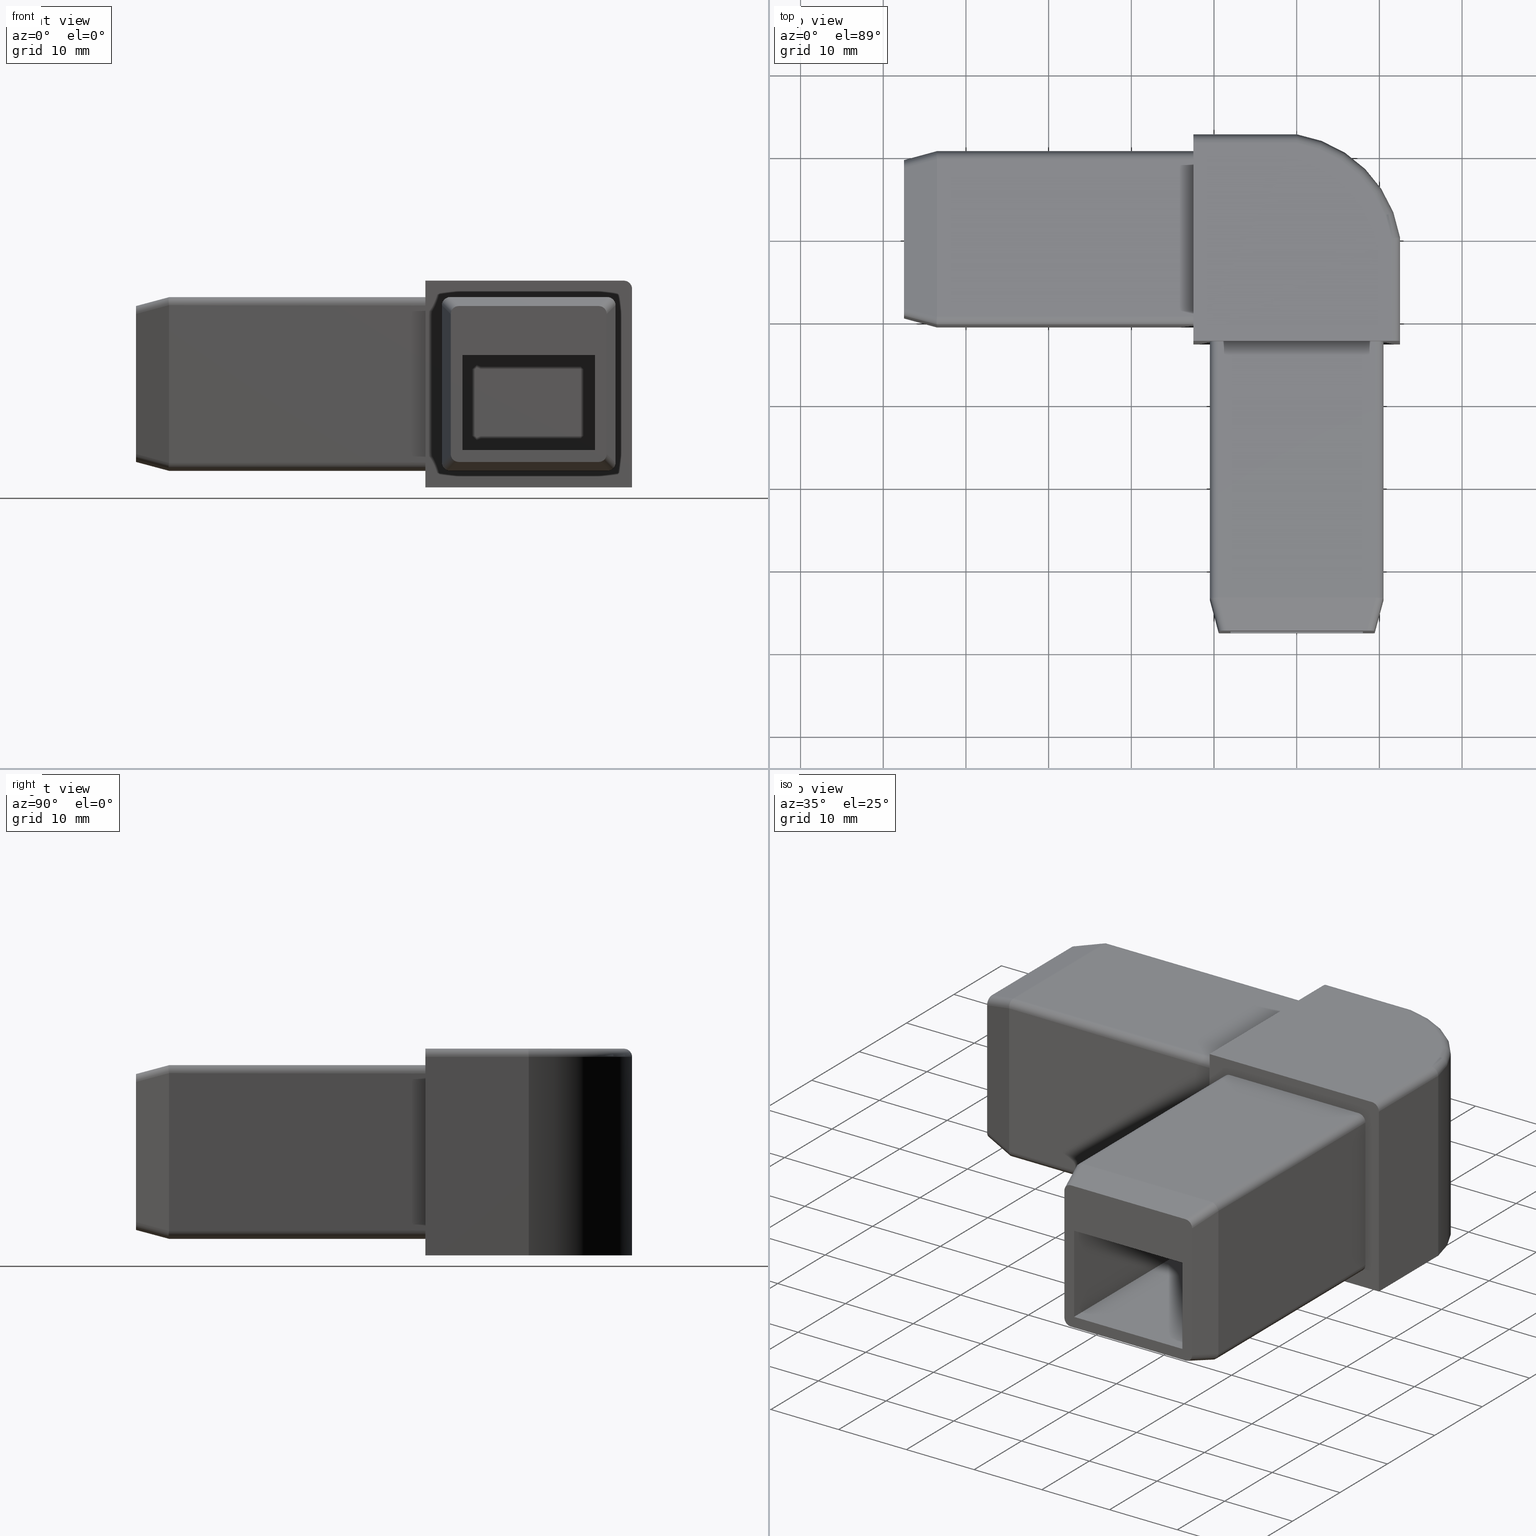
[diagram: canonical four-view strip — front | top / right | iso, engineering-drawing reading convention]
A machine part, canonical four-view strip (front | top / right | iso — engineering-drawing reading convention). The complete STEP part file that produces these views, byte-faithful:
ISO-10303-21;
HEADER;
/* Generated by software containing ST-Developer
 * from STEP Tools, Inc. (www.steptools.com) 
 */

FILE_DESCRIPTION(
/* description */ ('GIUNZIONE PROFILI Q25-2VA NYLON R.7039 -'),
/* implementation_level */ '2;1');

FILE_NAME(
/* name */ 'C:\\Users\\Tecnico5\\Documents\\DGIPD0000011 (XF30105G).st
p',
/* time_stamp */ '2020-09-11T16:21:22+02:00',
/* author */ ('tecnico5'),
/* organization */ (''),
/* preprocessor_version */ 'ST-DEVELOPER v17.2',
/* originating_system */ 'Autodesk Inventor 2019',
/* authorisation */ '');

FILE_SCHEMA (('AUTOMOTIVE_DESIGN { 1 0 10303 214 3 1 1 }'));
ENDSEC;

DATA;
#10=MECHANICAL_DESIGN_GEOMETRIC_PRESENTATION_REPRESENTATION('',(#13),#1710);
#11=SHAPE_REPRESENTATION_RELATIONSHIP('SRR','None',#1717,#12);
#12=ADVANCED_BREP_SHAPE_REPRESENTATION('',(#14),#1709);
#13=STYLED_ITEM('',(#1726),#14);
#14=MANIFOLD_SOLID_BREP('Solido1',#988);
#15=TOROIDAL_SURFACE('',#1082,14.,1.);
#16=B_SPLINE_CURVE_WITH_KNOTS('',3,(#1611,#1612,#1613,#1614,#1615,#1616,
#1617,#1618,#1619,#1620,#1621,#1622),.UNSPECIFIED.,.F.,.F.,(4,2,2,2,2,4),
(-0.157816372484156,-0.157332018657827,-0.11710726822599,-0.0779693339599237,
-0.0389542141263502,0.),.UNSPECIFIED.);
#17=B_SPLINE_CURVE_WITH_KNOTS('',3,(#1628,#1629,#1630,#1631,#1632,#1633,
#1634,#1635,#1636,#1637,#1638,#1639),.UNSPECIFIED.,.F.,.F.,(4,2,2,2,2,4),
(-0.00048441925970662,0.,0.0402301845611976,0.0793734061340966,0.118393796682988,
0.157353273296648),.UNSPECIFIED.);
#18=FACE_BOUND('',#122,.T.);
#19=FACE_BOUND('',#146,.T.);
#20=FACE_BOUND('',#158,.T.);
#21=FACE_BOUND('',#174,.T.);
#22=PLANE('',#1015);
#23=PLANE('',#1019);
#24=PLANE('',#1021);
#25=PLANE('',#1027);
#26=PLANE('',#1034);
#27=PLANE('',#1041);
#28=PLANE('',#1042);
#29=PLANE('',#1050);
#30=PLANE('',#1052);
#31=PLANE('',#1060);
#32=PLANE('',#1061);
#33=PLANE('',#1068);
#34=PLANE('',#1070);
#35=PLANE('',#1072);
#36=PLANE('',#1078);
#37=PLANE('',#1079);
#38=PLANE('',#1087);
#39=PLANE('',#1088);
#40=PLANE('',#1089);
#41=PLANE('',#1090);
#42=PLANE('',#1091);
#43=PLANE('',#1092);
#44=PLANE('',#1093);
#45=PLANE('',#1094);
#46=PLANE('',#1095);
#47=PLANE('',#1096);
#48=PLANE('',#1097);
#49=PLANE('',#1098);
#50=PLANE('',#1099);
#51=PLANE('',#1102);
#52=PLANE('',#1103);
#53=PLANE('',#1104);
#54=CIRCLE('',#1012,1.);
#55=CIRCLE('',#1023,1.);
#56=CIRCLE('',#1029,1.);
#57=CIRCLE('',#1038,1.);
#58=CIRCLE('',#1047,1.);
#59=CIRCLE('',#1057,1.);
#60=CIRCLE('',#1066,1.);
#61=CIRCLE('',#1076,1.);
#62=CIRCLE('',#1081,1.);
#63=CIRCLE('',#1083,15.);
#64=CIRCLE('',#1084,14.);
#65=CIRCLE('',#1086,1.);
#66=CIRCLE('',#1101,15.);
#67=FACE_OUTER_BOUND('',#119,.T.);
#68=FACE_OUTER_BOUND('',#120,.T.);
#69=FACE_OUTER_BOUND('',#121,.T.);
#70=FACE_OUTER_BOUND('',#123,.T.);
#71=FACE_OUTER_BOUND('',#124,.T.);
#72=FACE_OUTER_BOUND('',#125,.T.);
#73=FACE_OUTER_BOUND('',#126,.T.);
#74=FACE_OUTER_BOUND('',#127,.T.);
#75=FACE_OUTER_BOUND('',#128,.T.);
#76=FACE_OUTER_BOUND('',#129,.T.);
#77=FACE_OUTER_BOUND('',#130,.T.);
#78=FACE_OUTER_BOUND('',#131,.T.);
#79=FACE_OUTER_BOUND('',#132,.T.);
#80=FACE_OUTER_BOUND('',#133,.T.);
#81=FACE_OUTER_BOUND('',#134,.T.);
#82=FACE_OUTER_BOUND('',#135,.T.);
#83=FACE_OUTER_BOUND('',#136,.T.);
#84=FACE_OUTER_BOUND('',#137,.T.);
#85=FACE_OUTER_BOUND('',#138,.T.);
#86=FACE_OUTER_BOUND('',#139,.T.);
#87=FACE_OUTER_BOUND('',#140,.T.);
#88=FACE_OUTER_BOUND('',#141,.T.);
#89=FACE_OUTER_BOUND('',#142,.T.);
#90=FACE_OUTER_BOUND('',#143,.T.);
#91=FACE_OUTER_BOUND('',#144,.T.);
#92=FACE_OUTER_BOUND('',#145,.T.);
#93=FACE_OUTER_BOUND('',#147,.T.);
#94=FACE_OUTER_BOUND('',#148,.T.);
#95=FACE_OUTER_BOUND('',#149,.T.);
#96=FACE_OUTER_BOUND('',#150,.T.);
#97=FACE_OUTER_BOUND('',#151,.T.);
#98=FACE_OUTER_BOUND('',#152,.T.);
#99=FACE_OUTER_BOUND('',#153,.T.);
#100=FACE_OUTER_BOUND('',#154,.T.);
#101=FACE_OUTER_BOUND('',#155,.T.);
#102=FACE_OUTER_BOUND('',#156,.T.);
#103=FACE_OUTER_BOUND('',#157,.T.);
#104=FACE_OUTER_BOUND('',#159,.T.);
#105=FACE_OUTER_BOUND('',#160,.T.);
#106=FACE_OUTER_BOUND('',#161,.T.);
#107=FACE_OUTER_BOUND('',#162,.T.);
#108=FACE_OUTER_BOUND('',#163,.T.);
#109=FACE_OUTER_BOUND('',#164,.T.);
#110=FACE_OUTER_BOUND('',#165,.T.);
#111=FACE_OUTER_BOUND('',#166,.T.);
#112=FACE_OUTER_BOUND('',#167,.T.);
#113=FACE_OUTER_BOUND('',#168,.T.);
#114=FACE_OUTER_BOUND('',#169,.T.);
#115=FACE_OUTER_BOUND('',#170,.T.);
#116=FACE_OUTER_BOUND('',#171,.T.);
#117=FACE_OUTER_BOUND('',#172,.T.);
#118=FACE_OUTER_BOUND('',#173,.T.);
#119=EDGE_LOOP('',(#633,#634,#635,#636));
#120=EDGE_LOOP('',(#637,#638,#639,#640,#641,#642));
#121=EDGE_LOOP('',(#643,#644,#645,#646,#647,#648,#649,#650));
#122=EDGE_LOOP('',(#651,#652,#653,#654));
#123=EDGE_LOOP('',(#655,#656,#657,#658,#659,#660));
#124=EDGE_LOOP('',(#661,#662,#663,#664));
#125=EDGE_LOOP('',(#665,#666,#667,#668,#669,#670));
#126=EDGE_LOOP('',(#671,#672,#673,#674));
#127=EDGE_LOOP('',(#675,#676,#677,#678));
#128=EDGE_LOOP('',(#679,#680,#681,#682,#683,#684));
#129=EDGE_LOOP('',(#685,#686,#687,#688));
#130=EDGE_LOOP('',(#689,#690,#691,#692,#693,#694));
#131=EDGE_LOOP('',(#695,#696,#697,#698));
#132=EDGE_LOOP('',(#699,#700,#701,#702,#703,#704));
#133=EDGE_LOOP('',(#705,#706,#707,#708,#709,#710));
#134=EDGE_LOOP('',(#711,#712,#713,#714));
#135=EDGE_LOOP('',(#715,#716,#717,#718));
#136=EDGE_LOOP('',(#719,#720,#721,#722,#723,#724));
#137=EDGE_LOOP('',(#725,#726,#727,#728,#729,#730));
#138=EDGE_LOOP('',(#731,#732,#733,#734));
#139=EDGE_LOOP('',(#735,#736,#737,#738));
#140=EDGE_LOOP('',(#739,#740,#741,#742,#743,#744));
#141=EDGE_LOOP('',(#745,#746,#747,#748,#749,#750));
#142=EDGE_LOOP('',(#751,#752,#753,#754));
#143=EDGE_LOOP('',(#755,#756,#757,#758));
#144=EDGE_LOOP('',(#759,#760,#761,#762,#763,#764));
#145=EDGE_LOOP('',(#765,#766,#767,#768,#769,#770,#771,#772));
#146=EDGE_LOOP('',(#773,#774,#775,#776));
#147=EDGE_LOOP('',(#777,#778,#779,#780,#781,#782));
#148=EDGE_LOOP('',(#783,#784,#785,#786));
#149=EDGE_LOOP('',(#787,#788,#789,#790));
#150=EDGE_LOOP('',(#791,#792,#793,#794,#795,#796));
#151=EDGE_LOOP('',(#797,#798,#799,#800,#801,#802));
#152=EDGE_LOOP('',(#803,#804,#805,#806));
#153=EDGE_LOOP('',(#807,#808,#809,#810));
#154=EDGE_LOOP('',(#811,#812,#813,#814));
#155=EDGE_LOOP('',(#815,#816,#817,#818));
#156=EDGE_LOOP('',(#819,#820,#821,#822,#823));
#157=EDGE_LOOP('',(#824,#825,#826,#827,#828));
#158=EDGE_LOOP('',(#829,#830,#831,#832,#833,#834,#835,#836));
#159=EDGE_LOOP('',(#837,#838,#839,#840));
#160=EDGE_LOOP('',(#841,#842,#843,#844,#845,#846));
#161=EDGE_LOOP('',(#847,#848,#849,#850));
#162=EDGE_LOOP('',(#851,#852,#853,#854));
#163=EDGE_LOOP('',(#855,#856,#857,#858));
#164=EDGE_LOOP('',(#859,#860,#861,#862,#863,#864,#865,#866));
#165=EDGE_LOOP('',(#867,#868,#869,#870));
#166=EDGE_LOOP('',(#871,#872,#873,#874,#875,#876,#877,#878));
#167=EDGE_LOOP('',(#879,#880,#881,#882));
#168=EDGE_LOOP('',(#883,#884,#885,#886));
#169=EDGE_LOOP('',(#887,#888,#889,#890));
#170=EDGE_LOOP('',(#891,#892,#893,#894));
#171=EDGE_LOOP('',(#895,#896,#897,#898,#899));
#172=EDGE_LOOP('',(#900,#901,#902,#903));
#173=EDGE_LOOP('',(#904,#905,#906,#907,#908));
#174=EDGE_LOOP('',(#909,#910,#911,#912,#913,#914,#915,#916));
#175=ELLIPSE('',#1009,1.06938933015482,1.);
#176=ELLIPSE('',#1010,1.0166274182762,1.);
#177=ELLIPSE('',#1013,3.86370330515628,1.);
#178=ELLIPSE('',#1014,3.86370330515628,1.);
#179=ELLIPSE('',#1016,1.06938933015482,1.);
#180=ELLIPSE('',#1017,1.06938933015482,1.);
#181=ELLIPSE('',#1018,1.06938933015482,1.);
#182=ELLIPSE('',#1020,3.86370330515628,1.);
#183=ELLIPSE('',#1024,3.86370330515628,1.);
#184=ELLIPSE('',#1025,1.0166274182762,1.);
#185=ELLIPSE('',#1030,3.86370330515628,1.);
#186=ELLIPSE('',#1031,1.01662741827621,1.);
#187=ELLIPSE('',#1032,3.86370330515628,1.);
#188=ELLIPSE('',#1036,1.0166274182762,1.);
#189=ELLIPSE('',#1039,3.86370330515628,1.);
#190=ELLIPSE('',#1040,3.86370330515628,1.);
#191=ELLIPSE('',#1044,1.06938933015482,1.);
#192=ELLIPSE('',#1045,1.0166274182762,1.);
#193=ELLIPSE('',#1048,3.86370330515628,1.);
#194=ELLIPSE('',#1049,3.86370330515627,1.);
#195=ELLIPSE('',#1051,3.86370330515628,1.);
#196=ELLIPSE('',#1054,1.06938933015482,1.);
#197=ELLIPSE('',#1055,1.0166274182762,1.);
#198=ELLIPSE('',#1058,3.86370330515627,1.);
#199=ELLIPSE('',#1059,3.86370330515628,1.);
#200=ELLIPSE('',#1063,1.06938933015482,1.);
#201=ELLIPSE('',#1064,1.0166274182762,1.);
#202=ELLIPSE('',#1067,3.86370330515628,1.);
#203=ELLIPSE('',#1069,1.06938933015482,1.);
#204=ELLIPSE('',#1071,3.86370330515628,1.);
#205=ELLIPSE('',#1074,1.0166274182762,1.);
#206=ELLIPSE('',#1077,3.86370330515628,1.);
#207=LINE('',#1400,#302);
#208=LINE('',#1404,#303);
#209=LINE('',#1411,#304);
#210=LINE('',#1415,#305);
#211=LINE('',#1418,#306);
#212=LINE('',#1422,#307);
#213=LINE('',#1426,#308);
#214=LINE('',#1429,#309);
#215=LINE('',#1432,#310);
#216=LINE('',#1434,#311);
#217=LINE('',#1436,#312);
#218=LINE('',#1437,#313);
#219=LINE('',#1440,#314);
#220=LINE('',#1443,#315);
#221=LINE('',#1446,#316);
#222=LINE('',#1447,#317);
#223=LINE('',#1452,#318);
#224=LINE('',#1457,#319);
#225=LINE('',#1460,#320);
#226=LINE('',#1462,#321);
#227=LINE('',#1463,#322);
#228=LINE('',#1468,#323);
#229=LINE('',#1475,#324);
#230=LINE('',#1476,#325);
#231=LINE('',#1480,#326);
#232=LINE('',#1482,#327);
#233=LINE('',#1489,#328);
#234=LINE('',#1493,#329);
#235=LINE('',#1495,#330);
#236=LINE('',#1497,#331);
#237=LINE('',#1501,#332);
#238=LINE('',#1505,#333);
#239=LINE('',#1512,#334);
#240=LINE('',#1516,#335);
#241=LINE('',#1519,#336);
#242=LINE('',#1523,#337);
#243=LINE('',#1524,#338);
#244=LINE('',#1527,#339);
#245=LINE('',#1528,#340);
#246=LINE('',#1532,#341);
#247=LINE('',#1536,#342);
#248=LINE('',#1543,#343);
#249=LINE('',#1547,#344);
#250=LINE('',#1549,#345);
#251=LINE('',#1550,#346);
#252=LINE('',#1552,#347);
#253=LINE('',#1556,#348);
#254=LINE('',#1563,#349);
#255=LINE('',#1567,#350);
#256=LINE('',#1570,#351);
#257=LINE('',#1573,#352);
#258=LINE('',#1575,#353);
#259=LINE('',#1577,#354);
#260=LINE('',#1578,#355);
#261=LINE('',#1581,#356);
#262=LINE('',#1584,#357);
#263=LINE('',#1587,#358);
#264=LINE('',#1588,#359);
#265=LINE('',#1591,#360);
#266=LINE('',#1597,#361);
#267=LINE('',#1600,#362);
#268=LINE('',#1602,#363);
#269=LINE('',#1606,#364);
#270=LINE('',#1610,#365);
#271=LINE('',#1642,#366);
#272=LINE('',#1645,#367);
#273=LINE('',#1648,#368);
#274=LINE('',#1649,#369);
#275=LINE('',#1652,#370);
#276=LINE('',#1654,#371);
#277=LINE('',#1655,#372);
#278=LINE('',#1656,#373);
#279=LINE('',#1659,#374);
#280=LINE('',#1660,#375);
#281=LINE('',#1662,#376);
#282=LINE('',#1666,#377);
#283=LINE('',#1667,#378);
#284=LINE('',#1668,#379);
#285=LINE('',#1671,#380);
#286=LINE('',#1673,#381);
#287=LINE('',#1674,#382);
#288=LINE('',#1678,#383);
#289=LINE('',#1679,#384);
#290=LINE('',#1680,#385);
#291=LINE('',#1682,#386);
#292=LINE('',#1684,#387);
#293=LINE('',#1685,#388);
#294=LINE('',#1687,#389);
#295=LINE('',#1690,#390);
#296=LINE('',#1691,#391);
#297=LINE('',#1693,#392);
#298=LINE('',#1698,#393);
#299=LINE('',#1702,#394);
#300=LINE('',#1703,#395);
#301=LINE('',#1705,#396);
#302=VECTOR('',#1109,10.);
#303=VECTOR('',#1112,10.);
#304=VECTOR('',#1119,10.);
#305=VECTOR('',#1124,10.);
#306=VECTOR('',#1127,10.);
#307=VECTOR('',#1130,10.);
#308=VECTOR('',#1133,10.);
#309=VECTOR('',#1136,10.);
#310=VECTOR('',#1137,10.);
#311=VECTOR('',#1138,10.);
#312=VECTOR('',#1139,10.);
#313=VECTOR('',#1140,10.);
#314=VECTOR('',#1143,10.);
#315=VECTOR('',#1146,10.);
#316=VECTOR('',#1149,10.);
#317=VECTOR('',#1150,10.);
#318=VECTOR('',#1155,10.);
#319=VECTOR('',#1162,10.);
#320=VECTOR('',#1165,10.);
#321=VECTOR('',#1166,10.);
#322=VECTOR('',#1167,10.);
#323=VECTOR('',#1172,10.);
#324=VECTOR('',#1181,10.);
#325=VECTOR('',#1182,10.);
#326=VECTOR('',#1187,10.);
#327=VECTOR('',#1188,10.);
#328=VECTOR('',#1195,10.);
#329=VECTOR('',#1200,10.);
#330=VECTOR('',#1203,10.);
#331=VECTOR('',#1206,10.);
#332=VECTOR('',#1209,10.);
#333=VECTOR('',#1212,10.);
#334=VECTOR('',#1219,10.);
#335=VECTOR('',#1224,10.);
#336=VECTOR('',#1227,10.);
#337=VECTOR('',#1230,10.);
#338=VECTOR('',#1231,10.);
#339=VECTOR('',#1234,10.);
#340=VECTOR('',#1235,10.);
#341=VECTOR('',#1238,10.);
#342=VECTOR('',#1241,10.);
#343=VECTOR('',#1248,10.);
#344=VECTOR('',#1253,10.);
#345=VECTOR('',#1256,10.);
#346=VECTOR('',#1257,10.);
#347=VECTOR('',#1260,10.);
#348=VECTOR('',#1263,10.);
#349=VECTOR('',#1272,10.);
#350=VECTOR('',#1277,10.);
#351=VECTOR('',#1280,10.);
#352=VECTOR('',#1281,10.);
#353=VECTOR('',#1282,10.);
#354=VECTOR('',#1283,10.);
#355=VECTOR('',#1284,10.);
#356=VECTOR('',#1287,10.);
#357=VECTOR('',#1290,10.);
#358=VECTOR('',#1293,10.);
#359=VECTOR('',#1294,10.);
#360=VECTOR('',#1297,10.);
#361=VECTOR('',#1304,10.);
#362=VECTOR('',#1309,10.);
#363=VECTOR('',#1312,10.);
#364=VECTOR('',#1315,10.);
#365=VECTOR('',#1318,10.);
#366=VECTOR('',#1327,10.);
#367=VECTOR('',#1330,10.);
#368=VECTOR('',#1333,10.);
#369=VECTOR('',#1334,10.);
#370=VECTOR('',#1337,10.);
#371=VECTOR('',#1338,10.);
#372=VECTOR('',#1339,10.);
#373=VECTOR('',#1340,10.);
#374=VECTOR('',#1343,10.);
#375=VECTOR('',#1344,10.);
#376=VECTOR('',#1347,10.);
#377=VECTOR('',#1350,10.);
#378=VECTOR('',#1351,10.);
#379=VECTOR('',#1352,10.);
#380=VECTOR('',#1355,10.);
#381=VECTOR('',#1356,10.);
#382=VECTOR('',#1357,10.);
#383=VECTOR('',#1360,10.);
#384=VECTOR('',#1361,10.);
#385=VECTOR('',#1362,10.);
#386=VECTOR('',#1365,10.);
#387=VECTOR('',#1366,10.);
#388=VECTOR('',#1367,10.);
#389=VECTOR('',#1370,10.);
#390=VECTOR('',#1373,10.);
#391=VECTOR('',#1374,10.);
#392=VECTOR('',#1377,10.);
#393=VECTOR('',#1384,10.);
#394=VECTOR('',#1389,10.);
#395=VECTOR('',#1390,10.);
#396=VECTOR('',#1393,10.);
#397=VERTEX_POINT('',#1398);
#398=VERTEX_POINT('',#1399);
#399=VERTEX_POINT('',#1401);
#400=VERTEX_POINT('',#1403);
#401=VERTEX_POINT('',#1407);
#402=VERTEX_POINT('',#1408);
#403=VERTEX_POINT('',#1410);
#404=VERTEX_POINT('',#1413);
#405=VERTEX_POINT('',#1417);
#406=VERTEX_POINT('',#1419);
#407=VERTEX_POINT('',#1421);
#408=VERTEX_POINT('',#1423);
#409=VERTEX_POINT('',#1425);
#410=VERTEX_POINT('',#1427);
#411=VERTEX_POINT('',#1430);
#412=VERTEX_POINT('',#1431);
#413=VERTEX_POINT('',#1433);
#414=VERTEX_POINT('',#1435);
#415=VERTEX_POINT('',#1439);
#416=VERTEX_POINT('',#1441);
#417=VERTEX_POINT('',#1445);
#418=VERTEX_POINT('',#1449);
#419=VERTEX_POINT('',#1451);
#420=VERTEX_POINT('',#1453);
#421=VERTEX_POINT('',#1459);
#422=VERTEX_POINT('',#1461);
#423=VERTEX_POINT('',#1465);
#424=VERTEX_POINT('',#1467);
#425=VERTEX_POINT('',#1469);
#426=VERTEX_POINT('',#1471);
#427=VERTEX_POINT('',#1479);
#428=VERTEX_POINT('',#1481);
#429=VERTEX_POINT('',#1485);
#430=VERTEX_POINT('',#1486);
#431=VERTEX_POINT('',#1488);
#432=VERTEX_POINT('',#1491);
#433=VERTEX_POINT('',#1499);
#434=VERTEX_POINT('',#1500);
#435=VERTEX_POINT('',#1502);
#436=VERTEX_POINT('',#1504);
#437=VERTEX_POINT('',#1508);
#438=VERTEX_POINT('',#1509);
#439=VERTEX_POINT('',#1511);
#440=VERTEX_POINT('',#1514);
#441=VERTEX_POINT('',#1518);
#442=VERTEX_POINT('',#1520);
#443=VERTEX_POINT('',#1522);
#444=VERTEX_POINT('',#1526);
#445=VERTEX_POINT('',#1530);
#446=VERTEX_POINT('',#1531);
#447=VERTEX_POINT('',#1533);
#448=VERTEX_POINT('',#1535);
#449=VERTEX_POINT('',#1539);
#450=VERTEX_POINT('',#1540);
#451=VERTEX_POINT('',#1542);
#452=VERTEX_POINT('',#1545);
#453=VERTEX_POINT('',#1554);
#454=VERTEX_POINT('',#1555);
#455=VERTEX_POINT('',#1560);
#456=VERTEX_POINT('',#1562);
#457=VERTEX_POINT('',#1566);
#458=VERTEX_POINT('',#1568);
#459=VERTEX_POINT('',#1571);
#460=VERTEX_POINT('',#1572);
#461=VERTEX_POINT('',#1574);
#462=VERTEX_POINT('',#1576);
#463=VERTEX_POINT('',#1580);
#464=VERTEX_POINT('',#1582);
#465=VERTEX_POINT('',#1586);
#466=VERTEX_POINT('',#1590);
#467=VERTEX_POINT('',#1594);
#468=VERTEX_POINT('',#1596);
#469=VERTEX_POINT('',#1604);
#470=VERTEX_POINT('',#1605);
#471=VERTEX_POINT('',#1607);
#472=VERTEX_POINT('',#1609);
#473=VERTEX_POINT('',#1624);
#474=VERTEX_POINT('',#1626);
#475=VERTEX_POINT('',#1641);
#476=VERTEX_POINT('',#1643);
#477=VERTEX_POINT('',#1647);
#478=VERTEX_POINT('',#1651);
#479=VERTEX_POINT('',#1653);
#480=VERTEX_POINT('',#1658);
#481=VERTEX_POINT('',#1664);
#482=VERTEX_POINT('',#1665);
#483=VERTEX_POINT('',#1670);
#484=VERTEX_POINT('',#1672);
#485=VERTEX_POINT('',#1676);
#486=VERTEX_POINT('',#1677);
#487=VERTEX_POINT('',#1683);
#488=VERTEX_POINT('',#1689);
#489=VERTEX_POINT('',#1697);
#490=VERTEX_POINT('',#1701);
#491=EDGE_CURVE('',#397,#398,#207,.T.);
#492=EDGE_CURVE('',#398,#399,#175,.T.);
#493=EDGE_CURVE('',#399,#400,#208,.T.);
#494=EDGE_CURVE('',#400,#397,#176,.T.);
#495=EDGE_CURVE('',#401,#402,#54,.F.);
#496=EDGE_CURVE('',#402,#403,#209,.T.);
#497=EDGE_CURVE('',#403,#397,#177,.T.);
#498=EDGE_CURVE('',#400,#404,#178,.T.);
#499=EDGE_CURVE('',#404,#401,#210,.T.);
#500=EDGE_CURVE('',#405,#398,#211,.T.);
#501=EDGE_CURVE('',#406,#405,#179,.T.);
#502=EDGE_CURVE('',#407,#406,#212,.T.);
#503=EDGE_CURVE('',#408,#407,#180,.T.);
#504=EDGE_CURVE('',#409,#408,#213,.T.);
#505=EDGE_CURVE('',#410,#409,#181,.T.);
#506=EDGE_CURVE('',#399,#410,#214,.T.);
#507=EDGE_CURVE('',#411,#412,#215,.T.);
#508=EDGE_CURVE('',#412,#413,#216,.T.);
#509=EDGE_CURVE('',#413,#414,#217,.T.);
#510=EDGE_CURVE('',#414,#411,#218,.T.);
#511=EDGE_CURVE('',#403,#415,#219,.T.);
#512=EDGE_CURVE('',#416,#415,#182,.T.);
#513=EDGE_CURVE('',#405,#416,#220,.T.);
#514=EDGE_CURVE('',#417,#402,#221,.T.);
#515=EDGE_CURVE('',#415,#417,#222,.T.);
#516=EDGE_CURVE('',#417,#418,#55,.F.);
#517=EDGE_CURVE('',#418,#419,#223,.T.);
#518=EDGE_CURVE('',#419,#420,#183,.T.);
#519=EDGE_CURVE('',#420,#416,#184,.T.);
#520=EDGE_CURVE('',#420,#406,#224,.T.);
#521=EDGE_CURVE('',#421,#418,#225,.T.);
#522=EDGE_CURVE('',#422,#421,#226,.T.);
#523=EDGE_CURVE('',#419,#422,#227,.T.);
#524=EDGE_CURVE('',#421,#423,#56,.F.);
#525=EDGE_CURVE('',#423,#424,#228,.T.);
#526=EDGE_CURVE('',#424,#425,#185,.T.);
#527=EDGE_CURVE('',#425,#426,#186,.T.);
#528=EDGE_CURVE('',#426,#422,#187,.T.);
#529=EDGE_CURVE('',#425,#408,#229,.T.);
#530=EDGE_CURVE('',#407,#426,#230,.T.);
#531=EDGE_CURVE('',#427,#410,#231,.T.);
#532=EDGE_CURVE('',#409,#428,#232,.T.);
#533=EDGE_CURVE('',#428,#427,#188,.T.);
#534=EDGE_CURVE('',#429,#430,#57,.F.);
#535=EDGE_CURVE('',#430,#431,#233,.T.);
#536=EDGE_CURVE('',#431,#427,#189,.T.);
#537=EDGE_CURVE('',#428,#432,#190,.T.);
#538=EDGE_CURVE('',#432,#429,#234,.T.);
#539=EDGE_CURVE('',#431,#404,#235,.T.);
#540=EDGE_CURVE('',#401,#430,#236,.T.);
#541=EDGE_CURVE('',#433,#434,#237,.T.);
#542=EDGE_CURVE('',#434,#435,#191,.T.);
#543=EDGE_CURVE('',#435,#436,#238,.T.);
#544=EDGE_CURVE('',#436,#433,#192,.T.);
#545=EDGE_CURVE('',#437,#438,#58,.F.);
#546=EDGE_CURVE('',#438,#439,#239,.T.);
#547=EDGE_CURVE('',#439,#433,#193,.T.);
#548=EDGE_CURVE('',#436,#440,#194,.T.);
#549=EDGE_CURVE('',#440,#437,#240,.T.);
#550=EDGE_CURVE('',#439,#441,#241,.T.);
#551=EDGE_CURVE('',#442,#441,#195,.T.);
#552=EDGE_CURVE('',#443,#442,#242,.T.);
#553=EDGE_CURVE('',#443,#434,#243,.T.);
#554=EDGE_CURVE('',#444,#438,#244,.T.);
#555=EDGE_CURVE('',#441,#444,#245,.T.);
#556=EDGE_CURVE('',#445,#446,#246,.T.);
#557=EDGE_CURVE('',#446,#447,#196,.T.);
#558=EDGE_CURVE('',#447,#448,#247,.T.);
#559=EDGE_CURVE('',#448,#445,#197,.T.);
#560=EDGE_CURVE('',#449,#450,#59,.F.);
#561=EDGE_CURVE('',#450,#451,#248,.T.);
#562=EDGE_CURVE('',#451,#445,#198,.T.);
#563=EDGE_CURVE('',#448,#452,#199,.T.);
#564=EDGE_CURVE('',#452,#449,#249,.T.);
#565=EDGE_CURVE('',#435,#446,#250,.T.);
#566=EDGE_CURVE('',#451,#440,#251,.T.);
#567=EDGE_CURVE('',#437,#450,#252,.T.);
#568=EDGE_CURVE('',#453,#454,#253,.T.);
#569=EDGE_CURVE('',#454,#443,#200,.T.);
#570=EDGE_CURVE('',#442,#453,#201,.T.);
#571=EDGE_CURVE('',#444,#455,#60,.F.);
#572=EDGE_CURVE('',#455,#456,#254,.T.);
#573=EDGE_CURVE('',#456,#453,#202,.T.);
#574=EDGE_CURVE('',#457,#454,#255,.T.);
#575=EDGE_CURVE('',#458,#457,#203,.T.);
#576=EDGE_CURVE('',#447,#458,#256,.T.);
#577=EDGE_CURVE('',#459,#460,#257,.T.);
#578=EDGE_CURVE('',#460,#461,#258,.T.);
#579=EDGE_CURVE('',#461,#462,#259,.T.);
#580=EDGE_CURVE('',#462,#459,#260,.T.);
#581=EDGE_CURVE('',#456,#463,#261,.T.);
#582=EDGE_CURVE('',#464,#463,#204,.T.);
#583=EDGE_CURVE('',#457,#464,#262,.T.);
#584=EDGE_CURVE('',#465,#455,#263,.T.);
#585=EDGE_CURVE('',#463,#465,#264,.T.);
#586=EDGE_CURVE('',#466,#458,#265,.T.);
#587=EDGE_CURVE('',#464,#466,#205,.T.);
#588=EDGE_CURVE('',#465,#467,#61,.F.);
#589=EDGE_CURVE('',#467,#468,#266,.T.);
#590=EDGE_CURVE('',#468,#466,#206,.T.);
#591=EDGE_CURVE('',#468,#452,#267,.T.);
#592=EDGE_CURVE('',#449,#467,#268,.T.);
#593=EDGE_CURVE('',#469,#470,#269,.T.);
#594=EDGE_CURVE('',#470,#471,#62,.T.);
#595=EDGE_CURVE('',#471,#472,#270,.T.);
#596=EDGE_CURVE('',#472,#469,#16,.T.);
#597=EDGE_CURVE('',#473,#469,#63,.T.);
#598=EDGE_CURVE('',#472,#474,#64,.T.);
#599=EDGE_CURVE('',#474,#473,#17,.T.);
#600=EDGE_CURVE('',#474,#475,#271,.T.);
#601=EDGE_CURVE('',#475,#476,#65,.T.);
#602=EDGE_CURVE('',#476,#473,#272,.T.);
#603=EDGE_CURVE('',#471,#477,#273,.T.);
#604=EDGE_CURVE('',#477,#475,#274,.T.);
#605=EDGE_CURVE('',#478,#470,#275,.T.);
#606=EDGE_CURVE('',#479,#478,#276,.T.);
#607=EDGE_CURVE('',#477,#479,#277,.T.);
#608=EDGE_CURVE('',#429,#423,#278,.T.);
#609=EDGE_CURVE('',#469,#480,#279,.T.);
#610=EDGE_CURVE('',#478,#480,#280,.T.);
#611=EDGE_CURVE('',#424,#432,#281,.T.);
#612=EDGE_CURVE('',#481,#482,#282,.T.);
#613=EDGE_CURVE('',#460,#481,#283,.T.);
#614=EDGE_CURVE('',#459,#482,#284,.T.);
#615=EDGE_CURVE('',#461,#483,#285,.T.);
#616=EDGE_CURVE('',#483,#484,#286,.T.);
#617=EDGE_CURVE('',#462,#484,#287,.T.);
#618=EDGE_CURVE('',#485,#486,#288,.T.);
#619=EDGE_CURVE('',#484,#485,#289,.T.);
#620=EDGE_CURVE('',#486,#483,#290,.T.);
#621=EDGE_CURVE('',#414,#481,#291,.T.);
#622=EDGE_CURVE('',#413,#487,#292,.T.);
#623=EDGE_CURVE('',#487,#486,#293,.T.);
#624=EDGE_CURVE('',#411,#482,#294,.T.);
#625=EDGE_CURVE('',#485,#488,#295,.T.);
#626=EDGE_CURVE('',#412,#488,#296,.T.);
#627=EDGE_CURVE('',#488,#487,#297,.T.);
#628=EDGE_CURVE('',#489,#473,#298,.T.);
#629=EDGE_CURVE('',#480,#489,#66,.T.);
#630=EDGE_CURVE('',#489,#490,#299,.T.);
#631=EDGE_CURVE('',#490,#479,#300,.T.);
#632=EDGE_CURVE('',#476,#490,#301,.T.);
#633=ORIENTED_EDGE('',*,*,#491,.T.);
#634=ORIENTED_EDGE('',*,*,#492,.T.);
#635=ORIENTED_EDGE('',*,*,#493,.T.);
#636=ORIENTED_EDGE('',*,*,#494,.T.);
#637=ORIENTED_EDGE('',*,*,#495,.T.);
#638=ORIENTED_EDGE('',*,*,#496,.T.);
#639=ORIENTED_EDGE('',*,*,#497,.T.);
#640=ORIENTED_EDGE('',*,*,#494,.F.);
#641=ORIENTED_EDGE('',*,*,#498,.T.);
#642=ORIENTED_EDGE('',*,*,#499,.T.);
#643=ORIENTED_EDGE('',*,*,#492,.F.);
#644=ORIENTED_EDGE('',*,*,#500,.F.);
#645=ORIENTED_EDGE('',*,*,#501,.F.);
#646=ORIENTED_EDGE('',*,*,#502,.F.);
#647=ORIENTED_EDGE('',*,*,#503,.F.);
#648=ORIENTED_EDGE('',*,*,#504,.F.);
#649=ORIENTED_EDGE('',*,*,#505,.F.);
#650=ORIENTED_EDGE('',*,*,#506,.F.);
#651=ORIENTED_EDGE('',*,*,#507,.T.);
#652=ORIENTED_EDGE('',*,*,#508,.T.);
#653=ORIENTED_EDGE('',*,*,#509,.T.);
#654=ORIENTED_EDGE('',*,*,#510,.T.);
#655=ORIENTED_EDGE('',*,*,#491,.F.);
#656=ORIENTED_EDGE('',*,*,#497,.F.);
#657=ORIENTED_EDGE('',*,*,#511,.T.);
#658=ORIENTED_EDGE('',*,*,#512,.F.);
#659=ORIENTED_EDGE('',*,*,#513,.F.);
#660=ORIENTED_EDGE('',*,*,#500,.T.);
#661=ORIENTED_EDGE('',*,*,#496,.F.);
#662=ORIENTED_EDGE('',*,*,#514,.F.);
#663=ORIENTED_EDGE('',*,*,#515,.F.);
#664=ORIENTED_EDGE('',*,*,#511,.F.);
#665=ORIENTED_EDGE('',*,*,#516,.T.);
#666=ORIENTED_EDGE('',*,*,#517,.T.);
#667=ORIENTED_EDGE('',*,*,#518,.T.);
#668=ORIENTED_EDGE('',*,*,#519,.T.);
#669=ORIENTED_EDGE('',*,*,#512,.T.);
#670=ORIENTED_EDGE('',*,*,#515,.T.);
#671=ORIENTED_EDGE('',*,*,#520,.T.);
#672=ORIENTED_EDGE('',*,*,#501,.T.);
#673=ORIENTED_EDGE('',*,*,#513,.T.);
#674=ORIENTED_EDGE('',*,*,#519,.F.);
#675=ORIENTED_EDGE('',*,*,#517,.F.);
#676=ORIENTED_EDGE('',*,*,#521,.F.);
#677=ORIENTED_EDGE('',*,*,#522,.F.);
#678=ORIENTED_EDGE('',*,*,#523,.F.);
#679=ORIENTED_EDGE('',*,*,#524,.T.);
#680=ORIENTED_EDGE('',*,*,#525,.T.);
#681=ORIENTED_EDGE('',*,*,#526,.T.);
#682=ORIENTED_EDGE('',*,*,#527,.T.);
#683=ORIENTED_EDGE('',*,*,#528,.T.);
#684=ORIENTED_EDGE('',*,*,#522,.T.);
#685=ORIENTED_EDGE('',*,*,#529,.T.);
#686=ORIENTED_EDGE('',*,*,#503,.T.);
#687=ORIENTED_EDGE('',*,*,#530,.T.);
#688=ORIENTED_EDGE('',*,*,#527,.F.);
#689=ORIENTED_EDGE('',*,*,#518,.F.);
#690=ORIENTED_EDGE('',*,*,#523,.T.);
#691=ORIENTED_EDGE('',*,*,#528,.F.);
#692=ORIENTED_EDGE('',*,*,#530,.F.);
#693=ORIENTED_EDGE('',*,*,#502,.T.);
#694=ORIENTED_EDGE('',*,*,#520,.F.);
#695=ORIENTED_EDGE('',*,*,#531,.T.);
#696=ORIENTED_EDGE('',*,*,#505,.T.);
#697=ORIENTED_EDGE('',*,*,#532,.T.);
#698=ORIENTED_EDGE('',*,*,#533,.T.);
#699=ORIENTED_EDGE('',*,*,#534,.T.);
#700=ORIENTED_EDGE('',*,*,#535,.T.);
#701=ORIENTED_EDGE('',*,*,#536,.T.);
#702=ORIENTED_EDGE('',*,*,#533,.F.);
#703=ORIENTED_EDGE('',*,*,#537,.T.);
#704=ORIENTED_EDGE('',*,*,#538,.T.);
#705=ORIENTED_EDGE('',*,*,#493,.F.);
#706=ORIENTED_EDGE('',*,*,#506,.T.);
#707=ORIENTED_EDGE('',*,*,#531,.F.);
#708=ORIENTED_EDGE('',*,*,#536,.F.);
#709=ORIENTED_EDGE('',*,*,#539,.T.);
#710=ORIENTED_EDGE('',*,*,#498,.F.);
#711=ORIENTED_EDGE('',*,*,#499,.F.);
#712=ORIENTED_EDGE('',*,*,#539,.F.);
#713=ORIENTED_EDGE('',*,*,#535,.F.);
#714=ORIENTED_EDGE('',*,*,#540,.F.);
#715=ORIENTED_EDGE('',*,*,#541,.T.);
#716=ORIENTED_EDGE('',*,*,#542,.T.);
#717=ORIENTED_EDGE('',*,*,#543,.T.);
#718=ORIENTED_EDGE('',*,*,#544,.T.);
#719=ORIENTED_EDGE('',*,*,#545,.T.);
#720=ORIENTED_EDGE('',*,*,#546,.T.);
#721=ORIENTED_EDGE('',*,*,#547,.T.);
#722=ORIENTED_EDGE('',*,*,#544,.F.);
#723=ORIENTED_EDGE('',*,*,#548,.T.);
#724=ORIENTED_EDGE('',*,*,#549,.T.);
#725=ORIENTED_EDGE('',*,*,#541,.F.);
#726=ORIENTED_EDGE('',*,*,#547,.F.);
#727=ORIENTED_EDGE('',*,*,#550,.T.);
#728=ORIENTED_EDGE('',*,*,#551,.F.);
#729=ORIENTED_EDGE('',*,*,#552,.F.);
#730=ORIENTED_EDGE('',*,*,#553,.T.);
#731=ORIENTED_EDGE('',*,*,#546,.F.);
#732=ORIENTED_EDGE('',*,*,#554,.F.);
#733=ORIENTED_EDGE('',*,*,#555,.F.);
#734=ORIENTED_EDGE('',*,*,#550,.F.);
#735=ORIENTED_EDGE('',*,*,#556,.T.);
#736=ORIENTED_EDGE('',*,*,#557,.T.);
#737=ORIENTED_EDGE('',*,*,#558,.T.);
#738=ORIENTED_EDGE('',*,*,#559,.T.);
#739=ORIENTED_EDGE('',*,*,#560,.T.);
#740=ORIENTED_EDGE('',*,*,#561,.T.);
#741=ORIENTED_EDGE('',*,*,#562,.T.);
#742=ORIENTED_EDGE('',*,*,#559,.F.);
#743=ORIENTED_EDGE('',*,*,#563,.T.);
#744=ORIENTED_EDGE('',*,*,#564,.T.);
#745=ORIENTED_EDGE('',*,*,#543,.F.);
#746=ORIENTED_EDGE('',*,*,#565,.T.);
#747=ORIENTED_EDGE('',*,*,#556,.F.);
#748=ORIENTED_EDGE('',*,*,#562,.F.);
#749=ORIENTED_EDGE('',*,*,#566,.T.);
#750=ORIENTED_EDGE('',*,*,#548,.F.);
#751=ORIENTED_EDGE('',*,*,#549,.F.);
#752=ORIENTED_EDGE('',*,*,#566,.F.);
#753=ORIENTED_EDGE('',*,*,#561,.F.);
#754=ORIENTED_EDGE('',*,*,#567,.F.);
#755=ORIENTED_EDGE('',*,*,#568,.T.);
#756=ORIENTED_EDGE('',*,*,#569,.T.);
#757=ORIENTED_EDGE('',*,*,#552,.T.);
#758=ORIENTED_EDGE('',*,*,#570,.T.);
#759=ORIENTED_EDGE('',*,*,#571,.T.);
#760=ORIENTED_EDGE('',*,*,#572,.T.);
#761=ORIENTED_EDGE('',*,*,#573,.T.);
#762=ORIENTED_EDGE('',*,*,#570,.F.);
#763=ORIENTED_EDGE('',*,*,#551,.T.);
#764=ORIENTED_EDGE('',*,*,#555,.T.);
#765=ORIENTED_EDGE('',*,*,#542,.F.);
#766=ORIENTED_EDGE('',*,*,#553,.F.);
#767=ORIENTED_EDGE('',*,*,#569,.F.);
#768=ORIENTED_EDGE('',*,*,#574,.F.);
#769=ORIENTED_EDGE('',*,*,#575,.F.);
#770=ORIENTED_EDGE('',*,*,#576,.F.);
#771=ORIENTED_EDGE('',*,*,#557,.F.);
#772=ORIENTED_EDGE('',*,*,#565,.F.);
#773=ORIENTED_EDGE('',*,*,#577,.T.);
#774=ORIENTED_EDGE('',*,*,#578,.T.);
#775=ORIENTED_EDGE('',*,*,#579,.T.);
#776=ORIENTED_EDGE('',*,*,#580,.T.);
#777=ORIENTED_EDGE('',*,*,#568,.F.);
#778=ORIENTED_EDGE('',*,*,#573,.F.);
#779=ORIENTED_EDGE('',*,*,#581,.T.);
#780=ORIENTED_EDGE('',*,*,#582,.F.);
#781=ORIENTED_EDGE('',*,*,#583,.F.);
#782=ORIENTED_EDGE('',*,*,#574,.T.);
#783=ORIENTED_EDGE('',*,*,#572,.F.);
#784=ORIENTED_EDGE('',*,*,#584,.F.);
#785=ORIENTED_EDGE('',*,*,#585,.F.);
#786=ORIENTED_EDGE('',*,*,#581,.F.);
#787=ORIENTED_EDGE('',*,*,#586,.T.);
#788=ORIENTED_EDGE('',*,*,#575,.T.);
#789=ORIENTED_EDGE('',*,*,#583,.T.);
#790=ORIENTED_EDGE('',*,*,#587,.T.);
#791=ORIENTED_EDGE('',*,*,#588,.T.);
#792=ORIENTED_EDGE('',*,*,#589,.T.);
#793=ORIENTED_EDGE('',*,*,#590,.T.);
#794=ORIENTED_EDGE('',*,*,#587,.F.);
#795=ORIENTED_EDGE('',*,*,#582,.T.);
#796=ORIENTED_EDGE('',*,*,#585,.T.);
#797=ORIENTED_EDGE('',*,*,#558,.F.);
#798=ORIENTED_EDGE('',*,*,#576,.T.);
#799=ORIENTED_EDGE('',*,*,#586,.F.);
#800=ORIENTED_EDGE('',*,*,#590,.F.);
#801=ORIENTED_EDGE('',*,*,#591,.T.);
#802=ORIENTED_EDGE('',*,*,#563,.F.);
#803=ORIENTED_EDGE('',*,*,#564,.F.);
#804=ORIENTED_EDGE('',*,*,#591,.F.);
#805=ORIENTED_EDGE('',*,*,#589,.F.);
#806=ORIENTED_EDGE('',*,*,#592,.F.);
#807=ORIENTED_EDGE('',*,*,#593,.T.);
#808=ORIENTED_EDGE('',*,*,#594,.T.);
#809=ORIENTED_EDGE('',*,*,#595,.T.);
#810=ORIENTED_EDGE('',*,*,#596,.T.);
#811=ORIENTED_EDGE('',*,*,#597,.T.);
#812=ORIENTED_EDGE('',*,*,#596,.F.);
#813=ORIENTED_EDGE('',*,*,#598,.T.);
#814=ORIENTED_EDGE('',*,*,#599,.T.);
#815=ORIENTED_EDGE('',*,*,#600,.T.);
#816=ORIENTED_EDGE('',*,*,#601,.T.);
#817=ORIENTED_EDGE('',*,*,#602,.T.);
#818=ORIENTED_EDGE('',*,*,#599,.F.);
#819=ORIENTED_EDGE('',*,*,#600,.F.);
#820=ORIENTED_EDGE('',*,*,#598,.F.);
#821=ORIENTED_EDGE('',*,*,#595,.F.);
#822=ORIENTED_EDGE('',*,*,#603,.T.);
#823=ORIENTED_EDGE('',*,*,#604,.T.);
#824=ORIENTED_EDGE('',*,*,#594,.F.);
#825=ORIENTED_EDGE('',*,*,#605,.F.);
#826=ORIENTED_EDGE('',*,*,#606,.F.);
#827=ORIENTED_EDGE('',*,*,#607,.F.);
#828=ORIENTED_EDGE('',*,*,#603,.F.);
#829=ORIENTED_EDGE('',*,*,#514,.T.);
#830=ORIENTED_EDGE('',*,*,#495,.F.);
#831=ORIENTED_EDGE('',*,*,#540,.T.);
#832=ORIENTED_EDGE('',*,*,#534,.F.);
#833=ORIENTED_EDGE('',*,*,#608,.T.);
#834=ORIENTED_EDGE('',*,*,#524,.F.);
#835=ORIENTED_EDGE('',*,*,#521,.T.);
#836=ORIENTED_EDGE('',*,*,#516,.F.);
#837=ORIENTED_EDGE('',*,*,#593,.F.);
#838=ORIENTED_EDGE('',*,*,#609,.T.);
#839=ORIENTED_EDGE('',*,*,#610,.F.);
#840=ORIENTED_EDGE('',*,*,#605,.T.);
#841=ORIENTED_EDGE('',*,*,#526,.F.);
#842=ORIENTED_EDGE('',*,*,#611,.T.);
#843=ORIENTED_EDGE('',*,*,#537,.F.);
#844=ORIENTED_EDGE('',*,*,#532,.F.);
#845=ORIENTED_EDGE('',*,*,#504,.T.);
#846=ORIENTED_EDGE('',*,*,#529,.F.);
#847=ORIENTED_EDGE('',*,*,#612,.F.);
#848=ORIENTED_EDGE('',*,*,#613,.F.);
#849=ORIENTED_EDGE('',*,*,#577,.F.);
#850=ORIENTED_EDGE('',*,*,#614,.T.);
#851=ORIENTED_EDGE('',*,*,#579,.F.);
#852=ORIENTED_EDGE('',*,*,#615,.T.);
#853=ORIENTED_EDGE('',*,*,#616,.T.);
#854=ORIENTED_EDGE('',*,*,#617,.F.);
#855=ORIENTED_EDGE('',*,*,#618,.F.);
#856=ORIENTED_EDGE('',*,*,#619,.F.);
#857=ORIENTED_EDGE('',*,*,#616,.F.);
#858=ORIENTED_EDGE('',*,*,#620,.F.);
#859=ORIENTED_EDGE('',*,*,#620,.T.);
#860=ORIENTED_EDGE('',*,*,#615,.F.);
#861=ORIENTED_EDGE('',*,*,#578,.F.);
#862=ORIENTED_EDGE('',*,*,#613,.T.);
#863=ORIENTED_EDGE('',*,*,#621,.F.);
#864=ORIENTED_EDGE('',*,*,#509,.F.);
#865=ORIENTED_EDGE('',*,*,#622,.T.);
#866=ORIENTED_EDGE('',*,*,#623,.T.);
#867=ORIENTED_EDGE('',*,*,#612,.T.);
#868=ORIENTED_EDGE('',*,*,#624,.F.);
#869=ORIENTED_EDGE('',*,*,#510,.F.);
#870=ORIENTED_EDGE('',*,*,#621,.T.);
#871=ORIENTED_EDGE('',*,*,#625,.T.);
#872=ORIENTED_EDGE('',*,*,#626,.F.);
#873=ORIENTED_EDGE('',*,*,#507,.F.);
#874=ORIENTED_EDGE('',*,*,#624,.T.);
#875=ORIENTED_EDGE('',*,*,#614,.F.);
#876=ORIENTED_EDGE('',*,*,#580,.F.);
#877=ORIENTED_EDGE('',*,*,#617,.T.);
#878=ORIENTED_EDGE('',*,*,#619,.T.);
#879=ORIENTED_EDGE('',*,*,#508,.F.);
#880=ORIENTED_EDGE('',*,*,#626,.T.);
#881=ORIENTED_EDGE('',*,*,#627,.T.);
#882=ORIENTED_EDGE('',*,*,#622,.F.);
#883=ORIENTED_EDGE('',*,*,#618,.T.);
#884=ORIENTED_EDGE('',*,*,#623,.F.);
#885=ORIENTED_EDGE('',*,*,#627,.F.);
#886=ORIENTED_EDGE('',*,*,#625,.F.);
#887=ORIENTED_EDGE('',*,*,#525,.F.);
#888=ORIENTED_EDGE('',*,*,#608,.F.);
#889=ORIENTED_EDGE('',*,*,#538,.F.);
#890=ORIENTED_EDGE('',*,*,#611,.F.);
#891=ORIENTED_EDGE('',*,*,#597,.F.);
#892=ORIENTED_EDGE('',*,*,#628,.F.);
#893=ORIENTED_EDGE('',*,*,#629,.F.);
#894=ORIENTED_EDGE('',*,*,#609,.F.);
#895=ORIENTED_EDGE('',*,*,#629,.T.);
#896=ORIENTED_EDGE('',*,*,#630,.T.);
#897=ORIENTED_EDGE('',*,*,#631,.T.);
#898=ORIENTED_EDGE('',*,*,#606,.T.);
#899=ORIENTED_EDGE('',*,*,#610,.T.);
#900=ORIENTED_EDGE('',*,*,#602,.F.);
#901=ORIENTED_EDGE('',*,*,#632,.T.);
#902=ORIENTED_EDGE('',*,*,#630,.F.);
#903=ORIENTED_EDGE('',*,*,#628,.T.);
#904=ORIENTED_EDGE('',*,*,#601,.F.);
#905=ORIENTED_EDGE('',*,*,#604,.F.);
#906=ORIENTED_EDGE('',*,*,#607,.T.);
#907=ORIENTED_EDGE('',*,*,#631,.F.);
#908=ORIENTED_EDGE('',*,*,#632,.F.);
#909=ORIENTED_EDGE('',*,*,#584,.T.);
#910=ORIENTED_EDGE('',*,*,#571,.F.);
#911=ORIENTED_EDGE('',*,*,#554,.T.);
#912=ORIENTED_EDGE('',*,*,#545,.F.);
#913=ORIENTED_EDGE('',*,*,#567,.T.);
#914=ORIENTED_EDGE('',*,*,#560,.F.);
#915=ORIENTED_EDGE('',*,*,#592,.T.);
#916=ORIENTED_EDGE('',*,*,#588,.F.);
#917=CYLINDRICAL_SURFACE('',#1008,1.);
#918=CYLINDRICAL_SURFACE('',#1011,1.);
#919=CYLINDRICAL_SURFACE('',#1022,1.);
#920=CYLINDRICAL_SURFACE('',#1026,1.);
#921=CYLINDRICAL_SURFACE('',#1028,1.);
#922=CYLINDRICAL_SURFACE('',#1033,1.);
#923=CYLINDRICAL_SURFACE('',#1035,1.);
#924=CYLINDRICAL_SURFACE('',#1037,1.);
#925=CYLINDRICAL_SURFACE('',#1043,1.);
#926=CYLINDRICAL_SURFACE('',#1046,1.);
#927=CYLINDRICAL_SURFACE('',#1053,1.);
#928=CYLINDRICAL_SURFACE('',#1056,1.);
#929=CYLINDRICAL_SURFACE('',#1062,1.);
#930=CYLINDRICAL_SURFACE('',#1065,1.);
#931=CYLINDRICAL_SURFACE('',#1073,1.);
#932=CYLINDRICAL_SURFACE('',#1075,1.);
#933=CYLINDRICAL_SURFACE('',#1080,1.);
#934=CYLINDRICAL_SURFACE('',#1085,1.);
#935=CYLINDRICAL_SURFACE('',#1100,15.);
#936=ADVANCED_FACE('',(#67),#917,.T.);
#937=ADVANCED_FACE('',(#68),#918,.T.);
#938=ADVANCED_FACE('',(#69,#18),#22,.F.);
#939=ADVANCED_FACE('',(#70),#23,.T.);
#940=ADVANCED_FACE('',(#71),#24,.T.);
#941=ADVANCED_FACE('',(#72),#919,.T.);
#942=ADVANCED_FACE('',(#73),#920,.T.);
#943=ADVANCED_FACE('',(#74),#25,.T.);
#944=ADVANCED_FACE('',(#75),#921,.T.);
#945=ADVANCED_FACE('',(#76),#922,.T.);
#946=ADVANCED_FACE('',(#77),#26,.T.);
#947=ADVANCED_FACE('',(#78),#923,.T.);
#948=ADVANCED_FACE('',(#79),#924,.T.);
#949=ADVANCED_FACE('',(#80),#27,.T.);
#950=ADVANCED_FACE('',(#81),#28,.T.);
#951=ADVANCED_FACE('',(#82),#925,.T.);
#952=ADVANCED_FACE('',(#83),#926,.T.);
#953=ADVANCED_FACE('',(#84),#29,.T.);
#954=ADVANCED_FACE('',(#85),#30,.T.);
#955=ADVANCED_FACE('',(#86),#927,.T.);
#956=ADVANCED_FACE('',(#87),#928,.T.);
#957=ADVANCED_FACE('',(#88),#31,.T.);
#958=ADVANCED_FACE('',(#89),#32,.T.);
#959=ADVANCED_FACE('',(#90),#929,.T.);
#960=ADVANCED_FACE('',(#91),#930,.T.);
#961=ADVANCED_FACE('',(#92,#19),#33,.F.);
#962=ADVANCED_FACE('',(#93),#34,.T.);
#963=ADVANCED_FACE('',(#94),#35,.T.);
#964=ADVANCED_FACE('',(#95),#931,.T.);
#965=ADVANCED_FACE('',(#96),#932,.T.);
#966=ADVANCED_FACE('',(#97),#36,.T.);
#967=ADVANCED_FACE('',(#98),#37,.T.);
#968=ADVANCED_FACE('',(#99),#933,.T.);
#969=ADVANCED_FACE('',(#100),#15,.T.);
#970=ADVANCED_FACE('',(#101),#934,.T.);
#971=ADVANCED_FACE('',(#102),#38,.T.);
#972=ADVANCED_FACE('',(#103,#20),#39,.T.);
#973=ADVANCED_FACE('',(#104),#40,.T.);
#974=ADVANCED_FACE('',(#105),#41,.T.);
#975=ADVANCED_FACE('',(#106),#42,.F.);
#976=ADVANCED_FACE('',(#107),#43,.F.);
#977=ADVANCED_FACE('',(#108),#44,.F.);
#978=ADVANCED_FACE('',(#109),#45,.F.);
#979=ADVANCED_FACE('',(#110),#46,.F.);
#980=ADVANCED_FACE('',(#111),#47,.F.);
#981=ADVANCED_FACE('',(#112),#48,.F.);
#982=ADVANCED_FACE('',(#113),#49,.F.);
#983=ADVANCED_FACE('',(#114),#50,.T.);
#984=ADVANCED_FACE('',(#115),#935,.T.);
#985=ADVANCED_FACE('',(#116),#51,.F.);
#986=ADVANCED_FACE('',(#117),#52,.T.);
#987=ADVANCED_FACE('',(#118,#21),#53,.T.);
#988=CLOSED_SHELL('',(#936,#937,#938,#939,#940,#941,#942,#943,#944,#945,
#946,#947,#948,#949,#950,#951,#952,#953,#954,#955,#956,#957,#958,#959,#960,
#961,#962,#963,#964,#965,#966,#967,#968,#969,#970,#971,#972,#973,#974,#975,
#976,#977,#978,#979,#980,#981,#982,#983,#984,#985,#986,#987));
#989=DERIVED_UNIT_ELEMENT(#991,1.);
#990=DERIVED_UNIT_ELEMENT(#1712,3.);
#991=(
MASS_UNIT()
NAMED_UNIT(*)
SI_UNIT($,.GRAM.)
);
#992=DERIVED_UNIT((#989,#990));
#993=MEASURE_REPRESENTATION_ITEM('density measure',
POSITIVE_RATIO_MEASURE(1.13),#992);
#994=PROPERTY_DEFINITION_REPRESENTATION(#999,#996);
#995=PROPERTY_DEFINITION_REPRESENTATION(#1000,#997);
#996=REPRESENTATION('material name',(#998),#1709);
#997=REPRESENTATION('density',(#993),#1709);
#998=DESCRIPTIVE_REPRESENTATION_ITEM('NYLON','NYLON');
#999=PROPERTY_DEFINITION('material property','material name',#1719);
#1000=PROPERTY_DEFINITION('material property','density of part',#1719);
#1001=DATE_TIME_ROLE('creation_date');
#1002=APPLIED_DATE_AND_TIME_ASSIGNMENT(#1003,#1001,(#1719));
#1003=DATE_AND_TIME(#1004,#1005);
#1004=CALENDAR_DATE(2012,22,10);
#1005=LOCAL_TIME(23,0,0.,#1006);
#1006=COORDINATED_UNIVERSAL_TIME_OFFSET(0,0,.BEHIND.);
#1007=AXIS2_PLACEMENT_3D('placement',#1396,#1105,#1106);
#1008=AXIS2_PLACEMENT_3D('',#1397,#1107,#1108);
#1009=AXIS2_PLACEMENT_3D('',#1402,#1110,#1111);
#1010=AXIS2_PLACEMENT_3D('',#1405,#1113,#1114);
#1011=AXIS2_PLACEMENT_3D('',#1406,#1115,#1116);
#1012=AXIS2_PLACEMENT_3D('',#1409,#1117,#1118);
#1013=AXIS2_PLACEMENT_3D('',#1412,#1120,#1121);
#1014=AXIS2_PLACEMENT_3D('',#1414,#1122,#1123);
#1015=AXIS2_PLACEMENT_3D('',#1416,#1125,#1126);
#1016=AXIS2_PLACEMENT_3D('',#1420,#1128,#1129);
#1017=AXIS2_PLACEMENT_3D('',#1424,#1131,#1132);
#1018=AXIS2_PLACEMENT_3D('',#1428,#1134,#1135);
#1019=AXIS2_PLACEMENT_3D('',#1438,#1141,#1142);
#1020=AXIS2_PLACEMENT_3D('',#1442,#1144,#1145);
#1021=AXIS2_PLACEMENT_3D('',#1444,#1147,#1148);
#1022=AXIS2_PLACEMENT_3D('',#1448,#1151,#1152);
#1023=AXIS2_PLACEMENT_3D('',#1450,#1153,#1154);
#1024=AXIS2_PLACEMENT_3D('',#1454,#1156,#1157);
#1025=AXIS2_PLACEMENT_3D('',#1455,#1158,#1159);
#1026=AXIS2_PLACEMENT_3D('',#1456,#1160,#1161);
#1027=AXIS2_PLACEMENT_3D('',#1458,#1163,#1164);
#1028=AXIS2_PLACEMENT_3D('',#1464,#1168,#1169);
#1029=AXIS2_PLACEMENT_3D('',#1466,#1170,#1171);
#1030=AXIS2_PLACEMENT_3D('',#1470,#1173,#1174);
#1031=AXIS2_PLACEMENT_3D('',#1472,#1175,#1176);
#1032=AXIS2_PLACEMENT_3D('',#1473,#1177,#1178);
#1033=AXIS2_PLACEMENT_3D('',#1474,#1179,#1180);
#1034=AXIS2_PLACEMENT_3D('',#1477,#1183,#1184);
#1035=AXIS2_PLACEMENT_3D('',#1478,#1185,#1186);
#1036=AXIS2_PLACEMENT_3D('',#1483,#1189,#1190);
#1037=AXIS2_PLACEMENT_3D('',#1484,#1191,#1192);
#1038=AXIS2_PLACEMENT_3D('',#1487,#1193,#1194);
#1039=AXIS2_PLACEMENT_3D('',#1490,#1196,#1197);
#1040=AXIS2_PLACEMENT_3D('',#1492,#1198,#1199);
#1041=AXIS2_PLACEMENT_3D('',#1494,#1201,#1202);
#1042=AXIS2_PLACEMENT_3D('',#1496,#1204,#1205);
#1043=AXIS2_PLACEMENT_3D('',#1498,#1207,#1208);
#1044=AXIS2_PLACEMENT_3D('',#1503,#1210,#1211);
#1045=AXIS2_PLACEMENT_3D('',#1506,#1213,#1214);
#1046=AXIS2_PLACEMENT_3D('',#1507,#1215,#1216);
#1047=AXIS2_PLACEMENT_3D('',#1510,#1217,#1218);
#1048=AXIS2_PLACEMENT_3D('',#1513,#1220,#1221);
#1049=AXIS2_PLACEMENT_3D('',#1515,#1222,#1223);
#1050=AXIS2_PLACEMENT_3D('',#1517,#1225,#1226);
#1051=AXIS2_PLACEMENT_3D('',#1521,#1228,#1229);
#1052=AXIS2_PLACEMENT_3D('',#1525,#1232,#1233);
#1053=AXIS2_PLACEMENT_3D('',#1529,#1236,#1237);
#1054=AXIS2_PLACEMENT_3D('',#1534,#1239,#1240);
#1055=AXIS2_PLACEMENT_3D('',#1537,#1242,#1243);
#1056=AXIS2_PLACEMENT_3D('',#1538,#1244,#1245);
#1057=AXIS2_PLACEMENT_3D('',#1541,#1246,#1247);
#1058=AXIS2_PLACEMENT_3D('',#1544,#1249,#1250);
#1059=AXIS2_PLACEMENT_3D('',#1546,#1251,#1252);
#1060=AXIS2_PLACEMENT_3D('',#1548,#1254,#1255);
#1061=AXIS2_PLACEMENT_3D('',#1551,#1258,#1259);
#1062=AXIS2_PLACEMENT_3D('',#1553,#1261,#1262);
#1063=AXIS2_PLACEMENT_3D('',#1557,#1264,#1265);
#1064=AXIS2_PLACEMENT_3D('',#1558,#1266,#1267);
#1065=AXIS2_PLACEMENT_3D('',#1559,#1268,#1269);
#1066=AXIS2_PLACEMENT_3D('',#1561,#1270,#1271);
#1067=AXIS2_PLACEMENT_3D('',#1564,#1273,#1274);
#1068=AXIS2_PLACEMENT_3D('',#1565,#1275,#1276);
#1069=AXIS2_PLACEMENT_3D('',#1569,#1278,#1279);
#1070=AXIS2_PLACEMENT_3D('',#1579,#1285,#1286);
#1071=AXIS2_PLACEMENT_3D('',#1583,#1288,#1289);
#1072=AXIS2_PLACEMENT_3D('',#1585,#1291,#1292);
#1073=AXIS2_PLACEMENT_3D('',#1589,#1295,#1296);
#1074=AXIS2_PLACEMENT_3D('',#1592,#1298,#1299);
#1075=AXIS2_PLACEMENT_3D('',#1593,#1300,#1301);
#1076=AXIS2_PLACEMENT_3D('',#1595,#1302,#1303);
#1077=AXIS2_PLACEMENT_3D('',#1598,#1305,#1306);
#1078=AXIS2_PLACEMENT_3D('',#1599,#1307,#1308);
#1079=AXIS2_PLACEMENT_3D('',#1601,#1310,#1311);
#1080=AXIS2_PLACEMENT_3D('',#1603,#1313,#1314);
#1081=AXIS2_PLACEMENT_3D('',#1608,#1316,#1317);
#1082=AXIS2_PLACEMENT_3D('',#1623,#1319,#1320);
#1083=AXIS2_PLACEMENT_3D('',#1625,#1321,#1322);
#1084=AXIS2_PLACEMENT_3D('',#1627,#1323,#1324);
#1085=AXIS2_PLACEMENT_3D('',#1640,#1325,#1326);
#1086=AXIS2_PLACEMENT_3D('',#1644,#1328,#1329);
#1087=AXIS2_PLACEMENT_3D('',#1646,#1331,#1332);
#1088=AXIS2_PLACEMENT_3D('',#1650,#1335,#1336);
#1089=AXIS2_PLACEMENT_3D('',#1657,#1341,#1342);
#1090=AXIS2_PLACEMENT_3D('',#1661,#1345,#1346);
#1091=AXIS2_PLACEMENT_3D('',#1663,#1348,#1349);
#1092=AXIS2_PLACEMENT_3D('',#1669,#1353,#1354);
#1093=AXIS2_PLACEMENT_3D('',#1675,#1358,#1359);
#1094=AXIS2_PLACEMENT_3D('',#1681,#1363,#1364);
#1095=AXIS2_PLACEMENT_3D('',#1686,#1368,#1369);
#1096=AXIS2_PLACEMENT_3D('',#1688,#1371,#1372);
#1097=AXIS2_PLACEMENT_3D('',#1692,#1375,#1376);
#1098=AXIS2_PLACEMENT_3D('',#1694,#1378,#1379);
#1099=AXIS2_PLACEMENT_3D('',#1695,#1380,#1381);
#1100=AXIS2_PLACEMENT_3D('',#1696,#1382,#1383);
#1101=AXIS2_PLACEMENT_3D('',#1699,#1385,#1386);
#1102=AXIS2_PLACEMENT_3D('',#1700,#1387,#1388);
#1103=AXIS2_PLACEMENT_3D('',#1704,#1391,#1392);
#1104=AXIS2_PLACEMENT_3D('',#1706,#1394,#1395);
#1105=DIRECTION('axis',(0.,0.,1.));
#1106=DIRECTION('refdir',(1.,0.,0.));
#1107=DIRECTION('center_axis',(-0.935113126531029,0.250562807085732,-0.250562807085732));
#1108=DIRECTION('ref_axis',(-0.354349320006911,-0.661224832946645,0.661224832946647));
#1109=DIRECTION('',(-0.935113126531029,0.250562807085731,-0.250562807085731));
#1110=DIRECTION('center_axis',(1.,0.,0.));
#1111=DIRECTION('ref_axis',(0.,-0.707106781186547,0.707106781186548));
#1112=DIRECTION('',(0.935113126531029,-0.250562807085731,0.250562807085731));
#1113=DIRECTION('center_axis',(-0.983644530948816,0.127364509841796,-0.127364509841805));
#1114=DIRECTION('ref_axis',(-0.180120617183275,-0.695541718110994,0.695541718110943));
#1115=DIRECTION('center_axis',(-1.,0.,0.));
#1116=DIRECTION('ref_axis',(0.,-0.707106781186548,0.707106781186548));
#1117=DIRECTION('center_axis',(1.,0.,0.));
#1118=DIRECTION('ref_axis',(0.,-0.707106781186548,0.707106781186548));
#1119=DIRECTION('',(-1.,0.,0.));
#1120=DIRECTION('center_axis',(0.258819045102521,-7.65995066018716E-17,
-0.965925826289068));
#1121=DIRECTION('ref_axis',(0.965925826289068,-1.79591789427697E-17,0.258819045102521));
#1122=DIRECTION('center_axis',(0.258819045102521,0.965925826289068,1.02132675469162E-16));
#1123=DIRECTION('ref_axis',(0.965925826289068,-0.258819045102521,-7.18367157710788E-17));
#1124=DIRECTION('',(1.,0.,0.));
#1125=DIRECTION('center_axis',(1.,0.,0.));
#1126=DIRECTION('ref_axis',(0.,0.,-1.));
#1127=DIRECTION('',(0.,-1.,7.93016446160826E-17));
#1128=DIRECTION('center_axis',(1.,0.,0.));
#1129=DIRECTION('ref_axis',(0.,0.707106781186547,0.707106781186548));
#1130=DIRECTION('',(0.,-2.11471052309554E-16,1.));
#1131=DIRECTION('center_axis',(1.,0.,0.));
#1132=DIRECTION('ref_axis',(0.,0.707106781186548,-0.707106781186547));
#1133=DIRECTION('',(0.,1.,0.));
#1134=DIRECTION('center_axis',(1.,0.,0.));
#1135=DIRECTION('ref_axis',(0.,-0.707106781186548,-0.707106781186548));
#1136=DIRECTION('',(0.,1.05735526154777E-16,-1.));
#1137=DIRECTION('',(0.,1.,-5.55111512312578E-16));
#1138=DIRECTION('',(0.,0.,1.));
#1139=DIRECTION('',(0.,-1.,2.77555756156289E-16));
#1140=DIRECTION('',(0.,-4.34435096592453E-16,-1.));
#1141=DIRECTION('center_axis',(-0.258819045102521,7.65995066018716E-17,
0.965925826289068));
#1142=DIRECTION('ref_axis',(0.965925826289068,0.,0.258819045102521));
#1143=DIRECTION('',(0.,1.,-7.93016446160826E-17));
#1144=DIRECTION('center_axis',(0.258819045102521,-7.65995066018716E-17,
-0.965925826289068));
#1145=DIRECTION('ref_axis',(0.965925826289068,0.,0.258819045102521));
#1146=DIRECTION('',(0.93511312653103,0.250562807085731,0.250562807085731));
#1147=DIRECTION('center_axis',(0.,7.93016446160826E-17,1.));
#1148=DIRECTION('ref_axis',(0.,1.,-7.93016446160826E-17));
#1149=DIRECTION('',(0.,-1.,7.93016446160826E-17));
#1150=DIRECTION('',(1.,0.,0.));
#1151=DIRECTION('center_axis',(-1.,0.,0.));
#1152=DIRECTION('ref_axis',(0.,0.707106781186548,0.707106781186547));
#1153=DIRECTION('center_axis',(1.,0.,0.));
#1154=DIRECTION('ref_axis',(0.,0.707106781186548,0.707106781186547));
#1155=DIRECTION('',(-1.,0.,0.));
#1156=DIRECTION('center_axis',(0.25881904510252,-0.965925826289068,-2.04265350938324E-16));
#1157=DIRECTION('ref_axis',(0.965925826289068,0.25881904510252,8.97958947138484E-17));
#1158=DIRECTION('center_axis',(0.983644530948817,0.127364509841796,0.127364509841796));
#1159=DIRECTION('ref_axis',(0.180120617183269,-0.695541718110969,-0.69554171811097));
#1160=DIRECTION('center_axis',(0.93511312653103,0.250562807085731,0.250562807085731));
#1161=DIRECTION('ref_axis',(-0.354349320006911,0.661224832946646,0.661224832946646));
#1162=DIRECTION('',(-0.93511312653103,-0.250562807085731,-0.250562807085731));
#1163=DIRECTION('center_axis',(0.,1.,2.11471052309554E-16));
#1164=DIRECTION('ref_axis',(0.,2.11471052309554E-16,-1.));
#1165=DIRECTION('',(0.,-2.11471052309554E-16,1.));
#1166=DIRECTION('',(1.,0.,0.));
#1167=DIRECTION('',(0.,2.11471052309554E-16,-1.));
#1168=DIRECTION('center_axis',(-1.,0.,0.));
#1169=DIRECTION('ref_axis',(0.,0.707106781186548,-0.707106781186547));
#1170=DIRECTION('center_axis',(1.,0.,0.));
#1171=DIRECTION('ref_axis',(0.,0.707106781186548,-0.707106781186547));
#1172=DIRECTION('',(-1.,0.,0.));
#1173=DIRECTION('center_axis',(0.258819045102521,0.,0.965925826289068));
#1174=DIRECTION('ref_axis',(0.965925826289068,0.,-0.258819045102521));
#1175=DIRECTION('center_axis',(0.983644530948813,0.127364509841812,-0.127364509841813));
#1176=DIRECTION('ref_axis',(0.180120617183293,-0.695541718110966,0.695541718110967));
#1177=DIRECTION('center_axis',(0.25881904510252,-0.965925826289068,-2.04265350938324E-16));
#1178=DIRECTION('ref_axis',(0.965925826289068,0.25881904510252,5.38775368283091E-17));
#1179=DIRECTION('center_axis',(0.93511312653103,0.250562807085731,-0.250562807085732));
#1180=DIRECTION('ref_axis',(-0.354349320006911,0.661224832946647,-0.661224832946645));
#1181=DIRECTION('',(-0.93511312653103,-0.250562807085731,0.250562807085732));
#1182=DIRECTION('',(0.93511312653103,0.250562807085731,-0.250562807085732));
#1183=DIRECTION('center_axis',(-0.25881904510252,0.965925826289068,2.04265350938324E-16));
#1184=DIRECTION('ref_axis',(0.,-2.11471052309554E-16,1.));
#1185=DIRECTION('center_axis',(0.935113126531029,-0.250562807085731,-0.250562807085731));
#1186=DIRECTION('ref_axis',(-0.354349320006911,-0.661224832946646,-0.661224832946646));
#1187=DIRECTION('',(-0.935113126531029,0.250562807085731,0.250562807085731));
#1188=DIRECTION('',(0.935113126531029,-0.250562807085731,-0.250562807085731));
#1189=DIRECTION('center_axis',(-0.983644530948816,0.127364509841795,0.127364509841805));
#1190=DIRECTION('ref_axis',(0.180120617183275,0.695541718110995,0.695541718110942));
#1191=DIRECTION('center_axis',(-1.,0.,0.));
#1192=DIRECTION('ref_axis',(0.,-0.707106781186547,-0.707106781186548));
#1193=DIRECTION('center_axis',(1.,0.,0.));
#1194=DIRECTION('ref_axis',(0.,-0.707106781186547,-0.707106781186548));
#1195=DIRECTION('',(-1.,0.,0.));
#1196=DIRECTION('center_axis',(0.258819045102521,0.965925826289068,1.02132675469162E-16));
#1197=DIRECTION('ref_axis',(0.965925826289068,-0.258819045102521,-5.38775368283091E-17));
#1198=DIRECTION('center_axis',(0.258819045102521,0.,0.965925826289068));
#1199=DIRECTION('ref_axis',(0.965925826289068,0.,-0.258819045102521));
#1200=DIRECTION('',(1.,0.,0.));
#1201=DIRECTION('center_axis',(-0.258819045102521,-0.965925826289068,-1.02132675469162E-16));
#1202=DIRECTION('ref_axis',(0.,1.05735526154777E-16,-1.));
#1203=DIRECTION('',(0.,-1.05735526154777E-16,1.));
#1204=DIRECTION('center_axis',(0.,-1.,-1.05735526154777E-16));
#1205=DIRECTION('ref_axis',(0.,-1.05735526154777E-16,1.));
#1206=DIRECTION('',(0.,1.05735526154777E-16,-1.));
#1207=DIRECTION('center_axis',(0.250562807085732,-0.93511312653103,0.250562807085731));
#1208=DIRECTION('ref_axis',(-0.661224832946645,-0.354349320006919,-0.661224832946643));
#1209=DIRECTION('',(0.250562807085732,-0.93511312653103,0.250562807085731));
#1210=DIRECTION('center_axis',(0.,1.,0.));
#1211=DIRECTION('ref_axis',(-0.707106781186548,0.,-0.707106781186547));
#1212=DIRECTION('',(-0.250562807085732,0.935113126531029,-0.250562807085731));
#1213=DIRECTION('center_axis',(0.127364509841822,-0.983644530948813,0.127364509841803));
#1214=DIRECTION('ref_axis',(-0.695541718110916,-0.180120617183293,-0.695541718111017));
#1215=DIRECTION('center_axis',(0.,-1.,0.));
#1216=DIRECTION('ref_axis',(-0.707106781186548,0.,-0.707106781186548));
#1217=DIRECTION('center_axis',(0.,1.,0.));
#1218=DIRECTION('ref_axis',(-0.707106781186548,0.,-0.707106781186548));
#1219=DIRECTION('',(0.,-1.,0.));
#1220=DIRECTION('center_axis',(2.04265350938324E-16,0.25881904510252,0.965925826289068));
#1221=DIRECTION('ref_axis',(-7.18367157710787E-17,0.965925826289068,-0.25881904510252));
#1222=DIRECTION('center_axis',(0.965925826289068,0.258819045102521,1.91498766504679E-16));
#1223=DIRECTION('ref_axis',(-0.258819045102521,0.965925826289068,-7.18367157710789E-17));
#1224=DIRECTION('',(0.,1.,0.));
#1225=DIRECTION('center_axis',(-2.04265350938324E-16,-0.25881904510252,
-0.965925826289068));
#1226=DIRECTION('ref_axis',(-1.,0.,2.11471052309554E-16));
#1227=DIRECTION('',(1.,0.,-2.11471052309554E-16));
#1228=DIRECTION('center_axis',(2.04265350938324E-16,0.25881904510252,0.965925826289068));
#1229=DIRECTION('ref_axis',(-5.38775368283091E-17,0.965925826289068,-0.25881904510252));
#1230=DIRECTION('',(0.250562807085731,0.93511312653103,-0.250562807085731));
#1231=DIRECTION('',(-1.,0.,2.11471052309554E-16));
#1232=DIRECTION('center_axis',(-2.11471052309554E-16,0.,-1.));
#1233=DIRECTION('ref_axis',(1.,0.,-2.11471052309554E-16));
#1234=DIRECTION('',(-1.,0.,2.11471052309554E-16));
#1235=DIRECTION('',(0.,1.,0.));
#1236=DIRECTION('center_axis',(-0.250562807085732,0.935113126531029,0.250562807085731));
#1237=DIRECTION('ref_axis',(-0.661224832946644,-0.35434932000692,0.661224832946643));
#1238=DIRECTION('',(0.250562807085732,-0.935113126531029,-0.250562807085731));
#1239=DIRECTION('center_axis',(0.,1.,0.));
#1240=DIRECTION('ref_axis',(-0.707106781186548,0.,0.707106781186547));
#1241=DIRECTION('',(-0.250562807085732,0.935113126531029,0.250562807085731));
#1242=DIRECTION('center_axis',(0.127364509841822,-0.983644530948813,-0.127364509841804));
#1243=DIRECTION('ref_axis',(0.695541718110917,0.180120617183293,-0.695541718111015));
#1244=DIRECTION('center_axis',(0.,-1.,0.));
#1245=DIRECTION('ref_axis',(-0.707106781186548,0.,0.707106781186547));
#1246=DIRECTION('center_axis',(0.,1.,0.));
#1247=DIRECTION('ref_axis',(-0.707106781186548,0.,0.707106781186547));
#1248=DIRECTION('',(0.,-1.,0.));
#1249=DIRECTION('center_axis',(0.965925826289068,0.258819045102521,1.91498766504679E-16));
#1250=DIRECTION('ref_axis',(-0.258819045102521,0.965925826289068,-1.07755073656618E-16));
#1251=DIRECTION('center_axis',(-2.55331688672905E-17,0.258819045102521,
-0.965925826289068));
#1252=DIRECTION('ref_axis',(0.,0.965925826289068,0.258819045102521));
#1253=DIRECTION('',(0.,1.,0.));
#1254=DIRECTION('center_axis',(-0.965925826289068,-0.258819045102521,-1.91498766504679E-16));
#1255=DIRECTION('ref_axis',(-1.98254111540207E-16,0.,1.));
#1256=DIRECTION('',(-1.98254111540207E-16,0.,1.));
#1257=DIRECTION('',(1.98254111540207E-16,0.,-1.));
#1258=DIRECTION('center_axis',(-1.,0.,-1.98254111540207E-16));
#1259=DIRECTION('ref_axis',(1.98254111540207E-16,0.,-1.));
#1260=DIRECTION('',(-1.98254111540207E-16,0.,1.));
#1261=DIRECTION('center_axis',(0.250562807085731,0.93511312653103,-0.250562807085731));
#1262=DIRECTION('ref_axis',(0.661224832946645,-0.354349320006911,-0.661224832946647));
#1263=DIRECTION('',(-0.250562807085731,-0.93511312653103,0.250562807085731));
#1264=DIRECTION('center_axis',(0.,1.,0.));
#1265=DIRECTION('ref_axis',(0.707106781186547,0.,-0.707106781186548));
#1266=DIRECTION('center_axis',(-0.127364509841796,-0.983644530948817,0.127364509841795));
#1267=DIRECTION('ref_axis',(-0.695541718110969,0.180120617183269,0.69554171811097));
#1268=DIRECTION('center_axis',(0.,-1.,0.));
#1269=DIRECTION('ref_axis',(0.707106781186547,0.,-0.707106781186548));
#1270=DIRECTION('center_axis',(0.,1.,0.));
#1271=DIRECTION('ref_axis',(0.707106781186547,0.,-0.707106781186548));
#1272=DIRECTION('',(0.,-1.,0.));
#1273=DIRECTION('center_axis',(-0.965925826289068,0.25881904510252,2.04265350938324E-16));
#1274=DIRECTION('ref_axis',(0.25881904510252,0.965925826289068,-5.38775368283091E-17));
#1275=DIRECTION('center_axis',(0.,1.,0.));
#1276=DIRECTION('ref_axis',(0.,0.,1.));
#1277=DIRECTION('',(-2.11471052309554E-16,0.,-1.));
#1278=DIRECTION('center_axis',(0.,1.,0.));
#1279=DIRECTION('ref_axis',(0.707106781186547,0.,0.707106781186547));
#1280=DIRECTION('',(1.,0.,-2.64338815386942E-17));
#1281=DIRECTION('',(0.,0.,1.));
#1282=DIRECTION('',(1.,0.,0.));
#1283=DIRECTION('',(0.,0.,-1.));
#1284=DIRECTION('',(-1.,0.,0.));
#1285=DIRECTION('center_axis',(0.965925826289068,-0.25881904510252,-2.04265350938324E-16));
#1286=DIRECTION('ref_axis',(-2.11471052309554E-16,0.,-1.));
#1287=DIRECTION('',(2.11471052309554E-16,0.,1.));
#1288=DIRECTION('center_axis',(-0.965925826289068,0.25881904510252,2.04265350938324E-16));
#1289=DIRECTION('ref_axis',(0.25881904510252,0.965925826289068,-5.38775368283091E-17));
#1290=DIRECTION('',(0.250562807085731,0.93511312653103,0.250562807085732));
#1291=DIRECTION('center_axis',(1.,0.,-2.11471052309554E-16));
#1292=DIRECTION('ref_axis',(2.11471052309554E-16,0.,1.));
#1293=DIRECTION('',(-2.11471052309554E-16,0.,-1.));
#1294=DIRECTION('',(0.,1.,0.));
#1295=DIRECTION('center_axis',(-0.250562807085731,-0.93511312653103,-0.250562807085732));
#1296=DIRECTION('ref_axis',(0.661224832946644,-0.35434932000692,0.661224832946644));
#1297=DIRECTION('',(-0.250562807085731,-0.93511312653103,-0.250562807085732));
#1298=DIRECTION('center_axis',(-0.127364509841805,-0.983644530948815,-0.127364509841804));
#1299=DIRECTION('ref_axis',(0.695541718110966,-0.180120617183281,0.69554171811097));
#1300=DIRECTION('center_axis',(0.,-1.,0.));
#1301=DIRECTION('ref_axis',(0.707106781186548,0.,0.707106781186547));
#1302=DIRECTION('center_axis',(0.,1.,0.));
#1303=DIRECTION('ref_axis',(0.707106781186548,0.,0.707106781186547));
#1304=DIRECTION('',(0.,-1.,0.));
#1305=DIRECTION('center_axis',(-2.55331688672905E-17,0.258819045102521,
-0.965925826289068));
#1306=DIRECTION('ref_axis',(0.,0.965925826289068,0.258819045102521));
#1307=DIRECTION('center_axis',(2.55331688672905E-17,-0.258819045102521,
0.965925826289068));
#1308=DIRECTION('ref_axis',(1.,0.,-2.64338815386942E-17));
#1309=DIRECTION('',(-1.,0.,2.64338815386942E-17));
#1310=DIRECTION('center_axis',(2.64338815386942E-17,0.,1.));
#1311=DIRECTION('ref_axis',(-1.,0.,2.64338815386942E-17));
#1312=DIRECTION('',(1.,0.,-2.64338815386942E-17));
#1313=DIRECTION('center_axis',(-1.,0.,0.));
#1314=DIRECTION('ref_axis',(0.,0.707106781186548,0.707106781186548));
#1315=DIRECTION('',(-1.,0.,0.));
#1316=DIRECTION('center_axis',(1.,0.,0.));
#1317=DIRECTION('ref_axis',(0.,0.707106781186548,0.707106781186548));
#1318=DIRECTION('',(1.,0.,0.));
#1319=DIRECTION('center_axis',(0.,0.,1.));
#1320=DIRECTION('ref_axis',(1.,0.,0.));
#1321=DIRECTION('center_axis',(0.,0.,1.));
#1322=DIRECTION('ref_axis',(0.707106781186548,0.707106781186547,0.));
#1323=DIRECTION('center_axis',(0.,0.,-1.));
#1324=DIRECTION('ref_axis',(0.707106781186548,0.707106781186547,0.));
#1325=DIRECTION('center_axis',(0.,1.,0.));
#1326=DIRECTION('ref_axis',(0.707106781186548,0.,0.707106781186548));
#1327=DIRECTION('',(0.,-1.,0.));
#1328=DIRECTION('center_axis',(0.,1.,0.));
#1329=DIRECTION('ref_axis',(0.707106781186548,0.,0.707106781186548));
#1330=DIRECTION('',(0.,1.,0.));
#1331=DIRECTION('center_axis',(0.,0.,1.));
#1332=DIRECTION('ref_axis',(1.,0.,0.));
#1333=DIRECTION('',(0.,-1.,0.));
#1334=DIRECTION('',(1.,0.,0.));
#1335=DIRECTION('center_axis',(-1.,0.,0.));
#1336=DIRECTION('ref_axis',(0.,-1.,0.));
#1337=DIRECTION('',(0.,0.,1.));
#1338=DIRECTION('',(0.,1.,0.));
#1339=DIRECTION('',(0.,0.,-1.));
#1340=DIRECTION('',(0.,1.,0.));
#1341=DIRECTION('center_axis',(0.,1.,0.));
#1342=DIRECTION('ref_axis',(-1.,0.,0.));
#1343=DIRECTION('',(0.,0.,-1.));
#1344=DIRECTION('',(1.,0.,0.));
#1345=DIRECTION('center_axis',(-0.258819045102521,0.,-0.965925826289068));
#1346=DIRECTION('ref_axis',(-0.965925826289068,0.,0.258819045102521));
#1347=DIRECTION('',(0.,-1.,0.));
#1348=DIRECTION('center_axis',(-1.,0.,0.));
#1349=DIRECTION('ref_axis',(0.,0.,1.));
#1350=DIRECTION('',(0.,-4.34435096592453E-16,-1.));
#1351=DIRECTION('',(0.,1.,0.));
#1352=DIRECTION('',(0.,1.,0.));
#1353=DIRECTION('center_axis',(1.,0.,0.));
#1354=DIRECTION('ref_axis',(0.,0.,-1.));
#1355=DIRECTION('',(0.,1.,0.));
#1356=DIRECTION('',(0.,0.,-1.));
#1357=DIRECTION('',(0.,1.,0.));
#1358=DIRECTION('center_axis',(0.,1.,0.));
#1359=DIRECTION('ref_axis',(0.,0.,1.));
#1360=DIRECTION('',(0.,0.,1.));
#1361=DIRECTION('',(-1.,0.,0.));
#1362=DIRECTION('',(1.,0.,0.));
#1363=DIRECTION('center_axis',(0.,2.77555756156289E-16,1.));
#1364=DIRECTION('ref_axis',(0.,-1.,2.77555756156289E-16));
#1365=DIRECTION('',(1.,0.,0.));
#1366=DIRECTION('',(1.,0.,0.));
#1367=DIRECTION('',(0.,-1.,2.77555756156289E-16));
#1368=DIRECTION('center_axis',(0.,-1.,4.34435096592453E-16));
#1369=DIRECTION('ref_axis',(0.,-4.34435096592453E-16,-1.));
#1370=DIRECTION('',(1.,0.,0.));
#1371=DIRECTION('center_axis',(0.,-5.55111512312578E-16,-1.));
#1372=DIRECTION('ref_axis',(0.,1.,-5.55111512312578E-16));
#1373=DIRECTION('',(0.,1.,-5.55111512312578E-16));
#1374=DIRECTION('',(1.,0.,0.));
#1375=DIRECTION('center_axis',(0.,1.,0.));
#1376=DIRECTION('ref_axis',(0.,0.,1.));
#1377=DIRECTION('',(0.,0.,1.));
#1378=DIRECTION('center_axis',(1.,0.,0.));
#1379=DIRECTION('ref_axis',(0.,0.,-1.));
#1380=DIRECTION('center_axis',(0.,0.,-1.));
#1381=DIRECTION('ref_axis',(0.,-1.,0.));
#1382=DIRECTION('center_axis',(0.,0.,-1.));
#1383=DIRECTION('ref_axis',(-0.987971216700087,-0.154637883366754,0.));
#1384=DIRECTION('',(0.,0.,1.));
#1385=DIRECTION('center_axis',(0.,0.,-1.));
#1386=DIRECTION('ref_axis',(-0.987971216700087,-0.154637883366754,0.));
#1387=DIRECTION('center_axis',(0.,0.,1.));
#1388=DIRECTION('ref_axis',(1.,0.,0.));
#1389=DIRECTION('',(0.,-1.,0.));
#1390=DIRECTION('',(-1.,0.,0.));
#1391=DIRECTION('center_axis',(1.,0.,0.));
#1392=DIRECTION('ref_axis',(0.,1.,0.));
#1393=DIRECTION('',(0.,0.,-1.));
#1394=DIRECTION('center_axis',(0.,-1.,0.));
#1395=DIRECTION('ref_axis',(1.,0.,0.));
#1396=CARTESIAN_POINT('',(0.,0.,0.));
#1397=CARTESIAN_POINT('Origin',(-47.3494946632252,-8.43325483331081,8.43325483331082));
#1398=CARTESIAN_POINT('',(-43.5020962954697,-9.53351247303272,10.4994382993218));
#1399=CARTESIAN_POINT('',(-47.5,-8.46227740398644,9.42820323027551));
#1400=CARTESIAN_POINT('',(-47.6083137083277,-8.43325483331081,9.39918065959989));
#1401=CARTESIAN_POINT('',(-47.5,-9.42820323027551,8.46227740398644));
#1402=CARTESIAN_POINT('Origin',(-47.5,-8.39292704986542,8.39292704986543));
#1403=CARTESIAN_POINT('',(-43.5020962954697,-10.4994382993218,9.53351247303273));
#1404=CARTESIAN_POINT('',(-47.6083137083277,-9.39918065959988,8.43325483331082));
#1405=CARTESIAN_POINT('Origin',(-43.3683475024126,-9.5,9.5));
#1406=CARTESIAN_POINT('Origin',(-12.5,-9.5,9.5));
#1407=CARTESIAN_POINT('',(-12.5,-10.5,9.5));
#1408=CARTESIAN_POINT('',(-12.5,-9.5,10.5));
#1409=CARTESIAN_POINT('Origin',(-12.5,-9.5,9.5));
#1410=CARTESIAN_POINT('',(-43.5,-9.5,10.5));
#1411=CARTESIAN_POINT('',(-12.5,-9.5,10.5));
#1412=CARTESIAN_POINT('Origin',(-47.2320508075689,-9.5,9.5));
#1413=CARTESIAN_POINT('',(-43.5,-10.5,9.5));
#1414=CARTESIAN_POINT('Origin',(-47.2320508075689,-9.5,9.5));
#1415=CARTESIAN_POINT('',(-12.5,-10.5,9.5));
#1416=CARTESIAN_POINT('Origin',(-47.5,2.69625591694681E-15,1.18952466924124E-15));
#1417=CARTESIAN_POINT('',(-47.5,8.46227740398644,9.42820323027551));
#1418=CARTESIAN_POINT('',(-47.5,-5.25,9.42820323027551));
#1419=CARTESIAN_POINT('',(-47.5,9.42820323027551,8.46227740398644));
#1420=CARTESIAN_POINT('Origin',(-47.5,8.39292704986543,8.39292704986543));
#1421=CARTESIAN_POINT('',(-47.5,9.42820323027552,-8.46227740398644));
#1422=CARTESIAN_POINT('',(-47.5,9.42820323027551,5.25));
#1423=CARTESIAN_POINT('',(-47.5,8.46227740398644,-9.42820323027551));
#1424=CARTESIAN_POINT('Origin',(-47.5,8.39292704986543,-8.39292704986543));
#1425=CARTESIAN_POINT('',(-47.5,-8.46227740398644,-9.42820323027551));
#1426=CARTESIAN_POINT('',(-47.5,5.25,-9.42820323027551));
#1427=CARTESIAN_POINT('',(-47.5,-9.42820323027551,-8.46227740398644));
#1428=CARTESIAN_POINT('Origin',(-47.5,-8.39292704986542,-8.39292704986543));
#1429=CARTESIAN_POINT('',(-47.5,-9.42820323027551,-5.25));
#1430=CARTESIAN_POINT('',(-47.5,-8.,-7.99999999999999));
#1431=CARTESIAN_POINT('',(-47.5,8.00000000000001,-8.));
#1432=CARTESIAN_POINT('',(-47.5,-4.,-8.));
#1433=CARTESIAN_POINT('',(-47.5,8.00000000000001,3.5));
#1434=CARTESIAN_POINT('',(-47.5,8.00000000000001,-4.));
#1435=CARTESIAN_POINT('',(-47.5,-7.99999999999999,3.5));
#1436=CARTESIAN_POINT('',(-47.5,4.00000000000001,3.5));
#1437=CARTESIAN_POINT('',(-47.5,-8.,1.75));
#1438=CARTESIAN_POINT('Origin',(-45.5,-5.25,9.96410161513776));
#1439=CARTESIAN_POINT('',(-43.5,9.5,10.5));
#1440=CARTESIAN_POINT('',(-43.5,-5.25,10.5));
#1441=CARTESIAN_POINT('',(-43.5020962954697,9.53351247303272,10.4994382993218));
#1442=CARTESIAN_POINT('Origin',(-47.2320508075689,9.5,9.5));
#1443=CARTESIAN_POINT('',(-47.6083137083277,8.43325483331082,9.39918065959988));
#1444=CARTESIAN_POINT('Origin',(-12.5,-10.5,10.5));
#1445=CARTESIAN_POINT('',(-12.5,9.5,10.5));
#1446=CARTESIAN_POINT('',(-12.5,1.,10.5));
#1447=CARTESIAN_POINT('',(-12.5,9.5,10.5));
#1448=CARTESIAN_POINT('Origin',(-12.5,9.5,9.5));
#1449=CARTESIAN_POINT('',(-12.5,10.5,9.5));
#1450=CARTESIAN_POINT('Origin',(-12.5,9.5,9.5));
#1451=CARTESIAN_POINT('',(-43.5,10.5,9.5));
#1452=CARTESIAN_POINT('',(-12.5,10.5,9.5));
#1453=CARTESIAN_POINT('',(-43.5020962954697,10.4994382993218,9.53351247303272));
#1454=CARTESIAN_POINT('Origin',(-47.2320508075689,9.5,9.5));
#1455=CARTESIAN_POINT('Origin',(-43.3683475024126,9.5,9.5));
#1456=CARTESIAN_POINT('Origin',(-47.3494946632252,8.43325483331082,8.43325483331081));
#1457=CARTESIAN_POINT('',(-47.6083137083277,9.39918065959988,8.43325483331081));
#1458=CARTESIAN_POINT('Origin',(-12.5,10.5,10.5));
#1459=CARTESIAN_POINT('',(-12.5,10.5,-9.5));
#1460=CARTESIAN_POINT('',(-12.5,10.5,5.25));
#1461=CARTESIAN_POINT('',(-43.5,10.5,-9.5));
#1462=CARTESIAN_POINT('',(-12.5,10.5,-9.5));
#1463=CARTESIAN_POINT('',(-43.5,10.5,5.25));
#1464=CARTESIAN_POINT('Origin',(-12.5,9.50000000000001,-9.5));
#1465=CARTESIAN_POINT('',(-12.5,9.50000000000001,-10.5));
#1466=CARTESIAN_POINT('Origin',(-12.5,9.50000000000001,-9.5));
#1467=CARTESIAN_POINT('',(-43.5,9.50000000000001,-10.5));
#1468=CARTESIAN_POINT('',(-12.5,9.50000000000001,-10.5));
#1469=CARTESIAN_POINT('',(-43.5020962954697,9.53351247303273,-10.4994382993218));
#1470=CARTESIAN_POINT('Origin',(-47.2320508075689,9.50000000000001,-9.5));
#1471=CARTESIAN_POINT('',(-43.5020962954697,10.4994382993218,-9.53351247303272));
#1472=CARTESIAN_POINT('Origin',(-43.3683475024126,9.50000000000001,-9.5));
#1473=CARTESIAN_POINT('Origin',(-47.2320508075689,9.50000000000001,-9.5));
#1474=CARTESIAN_POINT('Origin',(-47.3494946632252,8.43325483331082,-8.43325483331081));
#1475=CARTESIAN_POINT('',(-47.6083137083277,8.43325483331082,-9.39918065959988));
#1476=CARTESIAN_POINT('',(-47.6083137083277,9.39918065959989,-8.43325483331081));
#1477=CARTESIAN_POINT('Origin',(-45.5,9.96410161513776,5.25));
#1478=CARTESIAN_POINT('Origin',(-47.3494946632252,-8.43325483331081,-8.43325483331081));
#1479=CARTESIAN_POINT('',(-43.5020962954697,-10.4994382993218,-9.53351247303272));
#1480=CARTESIAN_POINT('',(-47.6083137083277,-9.39918065959987,-8.43325483331081));
#1481=CARTESIAN_POINT('',(-43.5020962954697,-9.53351247303272,-10.4994382993218));
#1482=CARTESIAN_POINT('',(-47.6083137083277,-8.43325483331081,-9.39918065959988));
#1483=CARTESIAN_POINT('Origin',(-43.3683475024126,-9.5,-9.5));
#1484=CARTESIAN_POINT('Origin',(-12.5,-9.5,-9.5));
#1485=CARTESIAN_POINT('',(-12.5,-9.5,-10.5));
#1486=CARTESIAN_POINT('',(-12.5,-10.5,-9.5));
#1487=CARTESIAN_POINT('Origin',(-12.5,-9.5,-9.5));
#1488=CARTESIAN_POINT('',(-43.5,-10.5,-9.5));
#1489=CARTESIAN_POINT('',(-12.5,-10.5,-9.5));
#1490=CARTESIAN_POINT('Origin',(-47.2320508075689,-9.5,-9.5));
#1491=CARTESIAN_POINT('',(-43.5,-9.5,-10.5));
#1492=CARTESIAN_POINT('Origin',(-47.2320508075689,-9.5,-9.5));
#1493=CARTESIAN_POINT('',(-12.5,-9.5,-10.5));
#1494=CARTESIAN_POINT('Origin',(-45.5,-9.96410161513775,-5.25));
#1495=CARTESIAN_POINT('',(-43.5,-10.5,-5.25));
#1496=CARTESIAN_POINT('Origin',(-12.5,-10.5,-10.5));
#1497=CARTESIAN_POINT('',(-12.5,-10.5,-5.25));
#1498=CARTESIAN_POINT('Origin',(-8.43325483331081,-47.3494946632252,-8.43325483331081));
#1499=CARTESIAN_POINT('',(-9.53351247303272,-43.5020962954697,-10.4994382993218));
#1500=CARTESIAN_POINT('',(-8.46227740398644,-47.5,-9.42820323027551));
#1501=CARTESIAN_POINT('',(-8.43325483331081,-47.6083137083277,-9.39918065959988));
#1502=CARTESIAN_POINT('',(-9.42820323027551,-47.5,-8.46227740398644));
#1503=CARTESIAN_POINT('Origin',(-8.39292704986542,-47.5,-8.39292704986542));
#1504=CARTESIAN_POINT('',(-10.4994382993218,-43.5020962954697,-9.53351247303272));
#1505=CARTESIAN_POINT('',(-9.39918065959988,-47.6083137083277,-8.43325483331081));
#1506=CARTESIAN_POINT('Origin',(-9.5,-43.3683475024126,-9.5));
#1507=CARTESIAN_POINT('Origin',(-9.5,-12.5,-9.5));
#1508=CARTESIAN_POINT('',(-10.5,-12.5,-9.5));
#1509=CARTESIAN_POINT('',(-9.5,-12.5,-10.5));
#1510=CARTESIAN_POINT('Origin',(-9.5,-12.5,-9.5));
#1511=CARTESIAN_POINT('',(-9.5,-43.5,-10.5));
#1512=CARTESIAN_POINT('',(-9.5,-12.5,-10.5));
#1513=CARTESIAN_POINT('Origin',(-9.5,-47.2320508075689,-9.5));
#1514=CARTESIAN_POINT('',(-10.5,-43.5,-9.5));
#1515=CARTESIAN_POINT('Origin',(-9.5,-47.2320508075689,-9.5));
#1516=CARTESIAN_POINT('',(-10.5,-12.5,-9.5));
#1517=CARTESIAN_POINT('Origin',(-5.25,-45.5,-9.96410161513775));
#1518=CARTESIAN_POINT('',(9.5,-43.5,-10.5));
#1519=CARTESIAN_POINT('',(-5.25,-43.5,-10.5));
#1520=CARTESIAN_POINT('',(9.53351247303272,-43.5020962954697,-10.4994382993218));
#1521=CARTESIAN_POINT('Origin',(9.5,-47.2320508075689,-9.5));
#1522=CARTESIAN_POINT('',(8.46227740398644,-47.5,-9.42820323027551));
#1523=CARTESIAN_POINT('',(8.43325483331081,-47.6083137083277,-9.39918065959988));
#1524=CARTESIAN_POINT('',(-5.25,-47.5,-9.42820323027551));
#1525=CARTESIAN_POINT('Origin',(-10.5,-12.5,-10.5));
#1526=CARTESIAN_POINT('',(9.5,-12.5,-10.5));
#1527=CARTESIAN_POINT('',(-11.5,-12.5,-10.5));
#1528=CARTESIAN_POINT('',(9.5,-12.5,-10.5));
#1529=CARTESIAN_POINT('Origin',(-8.43325483331081,-47.3494946632252,8.43325483331081));
#1530=CARTESIAN_POINT('',(-10.4994382993218,-43.5020962954697,9.53351247303272));
#1531=CARTESIAN_POINT('',(-9.42820323027551,-47.5,8.46227740398644));
#1532=CARTESIAN_POINT('',(-9.39918065959988,-47.6083137083277,8.43325483331081));
#1533=CARTESIAN_POINT('',(-8.46227740398644,-47.5,9.42820323027551));
#1534=CARTESIAN_POINT('Origin',(-8.39292704986543,-47.5,8.39292704986543));
#1535=CARTESIAN_POINT('',(-9.53351247303272,-43.5020962954697,10.4994382993218));
#1536=CARTESIAN_POINT('',(-8.43325483331081,-47.6083137083277,9.39918065959988));
#1537=CARTESIAN_POINT('Origin',(-9.5,-43.3683475024126,9.5));
#1538=CARTESIAN_POINT('Origin',(-9.5,-12.5,9.5));
#1539=CARTESIAN_POINT('',(-9.5,-12.5,10.5));
#1540=CARTESIAN_POINT('',(-10.5,-12.5,9.5));
#1541=CARTESIAN_POINT('Origin',(-9.5,-12.5,9.5));
#1542=CARTESIAN_POINT('',(-10.5,-43.5,9.5));
#1543=CARTESIAN_POINT('',(-10.5,-12.5,9.5));
#1544=CARTESIAN_POINT('Origin',(-9.5,-47.2320508075689,9.5));
#1545=CARTESIAN_POINT('',(-9.5,-43.5,10.5));
#1546=CARTESIAN_POINT('Origin',(-9.5,-47.2320508075689,9.5));
#1547=CARTESIAN_POINT('',(-9.5,-12.5,10.5));
#1548=CARTESIAN_POINT('Origin',(-9.96410161513776,-45.5,5.25));
#1549=CARTESIAN_POINT('',(-9.42820323027551,-47.5,5.25));
#1550=CARTESIAN_POINT('',(-10.5,-43.5,5.25));
#1551=CARTESIAN_POINT('Origin',(-10.5,-12.5,10.5));
#1552=CARTESIAN_POINT('',(-10.5,-12.5,5.25));
#1553=CARTESIAN_POINT('Origin',(8.43325483331081,-47.3494946632252,-8.43325483331081));
#1554=CARTESIAN_POINT('',(10.4994382993218,-43.5020962954697,-9.53351247303272));
#1555=CARTESIAN_POINT('',(9.42820323027551,-47.5,-8.46227740398644));
#1556=CARTESIAN_POINT('',(9.39918065959988,-47.6083137083277,-8.43325483331081));
#1557=CARTESIAN_POINT('Origin',(8.39292704986543,-47.5,-8.39292704986543));
#1558=CARTESIAN_POINT('Origin',(9.5,-43.3683475024126,-9.5));
#1559=CARTESIAN_POINT('Origin',(9.5,-12.5,-9.5));
#1560=CARTESIAN_POINT('',(10.5,-12.5,-9.5));
#1561=CARTESIAN_POINT('Origin',(9.5,-12.5,-9.5));
#1562=CARTESIAN_POINT('',(10.5,-43.5,-9.5));
#1563=CARTESIAN_POINT('',(10.5,-12.5,-9.5));
#1564=CARTESIAN_POINT('Origin',(9.5,-47.2320508075689,-9.5));
#1565=CARTESIAN_POINT('Origin',(3.96508223080413E-16,-47.5,0.));
#1566=CARTESIAN_POINT('',(9.42820323027551,-47.5,8.46227740398644));
#1567=CARTESIAN_POINT('',(9.42820323027551,-47.5,-5.25));
#1568=CARTESIAN_POINT('',(8.46227740398644,-47.5,9.42820323027551));
#1569=CARTESIAN_POINT('Origin',(8.39292704986543,-47.5,8.39292704986542));
#1570=CARTESIAN_POINT('',(5.25,-47.5,9.42820323027551));
#1571=CARTESIAN_POINT('',(-8.,-47.5,-8.));
#1572=CARTESIAN_POINT('',(-8.,-47.5,3.5));
#1573=CARTESIAN_POINT('',(-8.,-47.5,-4.));
#1574=CARTESIAN_POINT('',(8.,-47.5,3.5));
#1575=CARTESIAN_POINT('',(-4.,-47.5,3.5));
#1576=CARTESIAN_POINT('',(8.,-47.5,-8.));
#1577=CARTESIAN_POINT('',(8.,-47.5,1.75));
#1578=CARTESIAN_POINT('',(4.,-47.5,-8.));
#1579=CARTESIAN_POINT('Origin',(9.96410161513775,-45.5,-5.25));
#1580=CARTESIAN_POINT('',(10.5,-43.5,9.5));
#1581=CARTESIAN_POINT('',(10.5,-43.5,-5.25));
#1582=CARTESIAN_POINT('',(10.4994382993218,-43.5020962954697,9.53351247303272));
#1583=CARTESIAN_POINT('Origin',(9.5,-47.2320508075689,9.5));
#1584=CARTESIAN_POINT('',(9.39918065959988,-47.6083137083277,8.43325483331081));
#1585=CARTESIAN_POINT('Origin',(10.5,-12.5,-10.5));
#1586=CARTESIAN_POINT('',(10.5,-12.5,9.5));
#1587=CARTESIAN_POINT('',(10.5,-12.5,-5.25));
#1588=CARTESIAN_POINT('',(10.5,-12.5,9.5));
#1589=CARTESIAN_POINT('Origin',(8.43325483331082,-47.3494946632252,8.43325483331081));
#1590=CARTESIAN_POINT('',(9.53351247303272,-43.5020962954697,10.4994382993218));
#1591=CARTESIAN_POINT('',(8.43325483331082,-47.6083137083277,9.39918065959988));
#1592=CARTESIAN_POINT('Origin',(9.5,-43.3683475024126,9.5));
#1593=CARTESIAN_POINT('Origin',(9.5,-12.5,9.5));
#1594=CARTESIAN_POINT('',(9.5,-12.5,10.5));
#1595=CARTESIAN_POINT('Origin',(9.5,-12.5,9.5));
#1596=CARTESIAN_POINT('',(9.5,-43.5,10.5));
#1597=CARTESIAN_POINT('',(9.5,-12.5,10.5));
#1598=CARTESIAN_POINT('Origin',(9.5,-47.2320508075689,9.5));
#1599=CARTESIAN_POINT('Origin',(5.25,-45.5,9.96410161513775));
#1600=CARTESIAN_POINT('',(5.25,-43.5,10.5));
#1601=CARTESIAN_POINT('Origin',(10.5,-12.5,10.5));
#1602=CARTESIAN_POINT('',(-0.999999999999999,-12.5,10.5));
#1603=CARTESIAN_POINT('Origin',(6.25,11.5,11.5));
#1604=CARTESIAN_POINT('',(1.0547118733939E-14,12.5,11.5));
#1605=CARTESIAN_POINT('',(-12.5,12.5,11.5));
#1606=CARTESIAN_POINT('',(6.25,12.5,11.5));
#1607=CARTESIAN_POINT('',(-12.5,11.5,12.5));
#1608=CARTESIAN_POINT('Origin',(-12.5,11.5,11.5));
#1609=CARTESIAN_POINT('',(-0.0791367363201001,11.5,12.5));
#1610=CARTESIAN_POINT('',(6.25,11.5,12.5));
#1611=CARTESIAN_POINT('Ctrl Pts',(-0.0791367363201006,11.5,12.5));
#1612=CARTESIAN_POINT('Ctrl Pts',(-0.0790071146504372,11.5016095198015,
12.5));
#1613=CARTESIAN_POINT('Ctrl Pts',(-0.078877504341023,11.5032190382179,12.499996114169));
#1614=CARTESIAN_POINT('Ctrl Pts',(-0.0679850308392774,11.6384949877381,
12.4993429210619));
#1615=CARTESIAN_POINT('Ctrl Pts',(-0.0574182858016733,11.7707221972435,
12.4719034422057));
#1616=CARTESIAN_POINT('Ctrl Pts',(-0.0381543019511311,12.0132854492294,
12.3680272814131));
#1617=CARTESIAN_POINT('Ctrl Pts',(-0.0295942558582324,12.1218309039518,
12.2939123509771));
#1618=CARTESIAN_POINT('Ctrl Pts',(-0.015270947139806,12.3041865279406,12.1083980465621));
#1619=CARTESIAN_POINT('Ctrl Pts',(-0.00963417705027981,12.3763627449314,
11.9988861073275));
#1620=CARTESIAN_POINT('Ctrl Pts',(-0.00196490195682035,12.4747099137048,
11.7584315628955));
#1621=CARTESIAN_POINT('Ctrl Pts',(-8.78760584610448E-15,12.5,11.6298473804212));
#1622=CARTESIAN_POINT('Ctrl Pts',(-8.82432148185952E-15,12.5,11.5));
#1623=CARTESIAN_POINT('Origin',(-2.3195682505013,-2.3195682505013,11.5));
#1624=CARTESIAN_POINT('',(12.5,1.0547118733939E-14,11.5));
#1625=CARTESIAN_POINT('Origin',(-2.3195682505013,-2.3195682505013,11.5));
#1626=CARTESIAN_POINT('',(11.5,-0.0791367363200934,12.5));
#1627=CARTESIAN_POINT('Origin',(-2.3195682505013,-2.3195682505013,12.5));
#1628=CARTESIAN_POINT('Ctrl Pts',(11.5,-0.0791367363200934,12.5));
#1629=CARTESIAN_POINT('Ctrl Pts',(11.5016095198015,-0.0790071146504303,
12.5));
#1630=CARTESIAN_POINT('Ctrl Pts',(11.5032190382179,-0.0788775043410236,
12.499996114169));
#1631=CARTESIAN_POINT('Ctrl Pts',(11.6384949877381,-0.0679850308392781,
12.4993429210619));
#1632=CARTESIAN_POINT('Ctrl Pts',(11.7707221972435,-0.0574182858017211,
12.4719034422057));
#1633=CARTESIAN_POINT('Ctrl Pts',(12.0132854492294,-0.0381543019511593,
12.3680272814131));
#1634=CARTESIAN_POINT('Ctrl Pts',(12.1218309039518,-0.0295942558582164,
12.2939123509771));
#1635=CARTESIAN_POINT('Ctrl Pts',(12.3041865279406,-0.0152709471397982,
12.1083980465621));
#1636=CARTESIAN_POINT('Ctrl Pts',(12.3763627449314,-0.00963417705028062,
11.9988861073275));
#1637=CARTESIAN_POINT('Ctrl Pts',(12.4747099137048,-0.00196490195682096,
11.7584315628955));
#1638=CARTESIAN_POINT('Ctrl Pts',(12.5,-4.34008055942504E-15,11.6298473804212));
#1639=CARTESIAN_POINT('Ctrl Pts',(12.5,-4.38153202955704E-15,11.5));
#1640=CARTESIAN_POINT('Origin',(11.5,-6.25,11.5));
#1641=CARTESIAN_POINT('',(11.5,-12.5,12.5));
#1642=CARTESIAN_POINT('',(11.5,-6.25,12.5));
#1643=CARTESIAN_POINT('',(12.5,-12.5,11.5));
#1644=CARTESIAN_POINT('Origin',(11.5,-12.5,11.5));
#1645=CARTESIAN_POINT('',(12.5,-6.25,11.5));
#1646=CARTESIAN_POINT('Origin',(0.,0.,12.5));
#1647=CARTESIAN_POINT('',(-12.5,-12.5,12.5));
#1648=CARTESIAN_POINT('',(-12.5,-12.5,12.5));
#1649=CARTESIAN_POINT('',(12.5,-12.5,12.5));
#1650=CARTESIAN_POINT('Origin',(-12.5,12.5,0.));
#1651=CARTESIAN_POINT('',(-12.5,12.5,-12.5));
#1652=CARTESIAN_POINT('',(-12.5,12.5,0.));
#1653=CARTESIAN_POINT('',(-12.5,-12.5,-12.5));
#1654=CARTESIAN_POINT('',(-12.5,-12.5,-12.5));
#1655=CARTESIAN_POINT('',(-12.5,-12.5,0.));
#1656=CARTESIAN_POINT('',(-12.5,11.5,-10.5));
#1657=CARTESIAN_POINT('Origin',(12.5,12.5,0.));
#1658=CARTESIAN_POINT('',(0.,12.5,-12.5));
#1659=CARTESIAN_POINT('',(1.0547118733939E-14,12.5,12.5));
#1660=CARTESIAN_POINT('',(-12.5,12.5,-12.5));
#1661=CARTESIAN_POINT('Origin',(-45.5,5.25,-9.96410161513775));
#1662=CARTESIAN_POINT('',(-43.5,5.25,-10.5));
#1663=CARTESIAN_POINT('Origin',(-8.,-47.5,-8.));
#1664=CARTESIAN_POINT('',(-8.,-7.99999999999999,3.5));
#1665=CARTESIAN_POINT('',(-8.,-8.,-7.99999999999999));
#1666=CARTESIAN_POINT('',(-8.,-8.,-2.25000000000001));
#1667=CARTESIAN_POINT('',(-8.,-47.5,3.5));
#1668=CARTESIAN_POINT('',(-8.,-47.5,-8.));
#1669=CARTESIAN_POINT('Origin',(8.,-47.5,3.5));
#1670=CARTESIAN_POINT('',(8.,-7.5,3.5));
#1671=CARTESIAN_POINT('',(8.,-47.5,3.5));
#1672=CARTESIAN_POINT('',(8.,-7.5,-8.));
#1673=CARTESIAN_POINT('',(8.,-7.5,3.5));
#1674=CARTESIAN_POINT('',(8.,-47.5,-8.));
#1675=CARTESIAN_POINT('Origin',(1.21115239050017E-15,-7.5,-2.25));
#1676=CARTESIAN_POINT('',(-7.5,-7.5,-8.));
#1677=CARTESIAN_POINT('',(-7.5,-7.5,3.5));
#1678=CARTESIAN_POINT('',(-7.5,-7.5,-2.25));
#1679=CARTESIAN_POINT('',(8.,-7.5,-8.));
#1680=CARTESIAN_POINT('',(-8.,-7.5,3.5));
#1681=CARTESIAN_POINT('Origin',(-47.5,8.00000000000001,3.5));
#1682=CARTESIAN_POINT('',(-47.5,-7.99999999999999,3.5));
#1683=CARTESIAN_POINT('',(-7.5,8.00000000000001,3.5));
#1684=CARTESIAN_POINT('',(-47.5,8.00000000000001,3.5));
#1685=CARTESIAN_POINT('',(-7.5,8.00000000000001,3.5));
#1686=CARTESIAN_POINT('Origin',(-47.5,-7.99999999999999,3.5));
#1687=CARTESIAN_POINT('',(-47.5,-8.,-7.99999999999999));
#1688=CARTESIAN_POINT('Origin',(-47.5,-8.,-7.99999999999999));
#1689=CARTESIAN_POINT('',(-7.5,8.00000000000001,-8.));
#1690=CARTESIAN_POINT('',(-7.5,-8.,-7.99999999999999));
#1691=CARTESIAN_POINT('',(-47.5,8.00000000000001,-8.));
#1692=CARTESIAN_POINT('Origin',(-47.5,8.00000000000001,-8.));
#1693=CARTESIAN_POINT('',(-7.5,8.00000000000001,-8.));
#1694=CARTESIAN_POINT('Origin',(-7.5,5.20795527915073E-15,-2.25));
#1695=CARTESIAN_POINT('Origin',(-12.5,10.5,-10.5));
#1696=CARTESIAN_POINT('Origin',(-2.3195682505013,-2.3195682505013,12.5));
#1697=CARTESIAN_POINT('',(12.5,0.,-12.5));
#1698=CARTESIAN_POINT('',(12.5,1.0547118733939E-14,12.5));
#1699=CARTESIAN_POINT('Origin',(-2.3195682505013,-2.3195682505013,-12.5));
#1700=CARTESIAN_POINT('Origin',(0.,0.,-12.5));
#1701=CARTESIAN_POINT('',(12.5,-12.5,-12.5));
#1702=CARTESIAN_POINT('',(12.5,12.5,-12.5));
#1703=CARTESIAN_POINT('',(12.5,-12.5,-12.5));
#1704=CARTESIAN_POINT('Origin',(12.5,-12.5,0.));
#1705=CARTESIAN_POINT('',(12.5,-12.5,0.));
#1706=CARTESIAN_POINT('Origin',(-12.5,-12.5,0.));
#1707=UNCERTAINTY_MEASURE_WITH_UNIT(LENGTH_MEASURE(0.01),#1711,
'DISTANCE_ACCURACY_VALUE',
'Maximum model space distance between geometric entities at asserted c
onnectivities');
#1708=UNCERTAINTY_MEASURE_WITH_UNIT(LENGTH_MEASURE(0.01),#1711,
'DISTANCE_ACCURACY_VALUE',
'Maximum model space distance between geometric entities at asserted c
onnectivities');
#1709=(
GEOMETRIC_REPRESENTATION_CONTEXT(3)
GLOBAL_UNCERTAINTY_ASSIGNED_CONTEXT((#1707))
GLOBAL_UNIT_ASSIGNED_CONTEXT((#1711,#1713,#1714))
REPRESENTATION_CONTEXT('','3D')
);
#1710=(
GEOMETRIC_REPRESENTATION_CONTEXT(3)
GLOBAL_UNCERTAINTY_ASSIGNED_CONTEXT((#1708))
GLOBAL_UNIT_ASSIGNED_CONTEXT((#1711,#1713,#1714))
REPRESENTATION_CONTEXT('','3D')
);
#1711=(
LENGTH_UNIT()
NAMED_UNIT(*)
SI_UNIT(.MILLI.,.METRE.)
);
#1712=(
LENGTH_UNIT()
NAMED_UNIT(*)
SI_UNIT(.CENTI.,.METRE.)
);
#1713=(
NAMED_UNIT(*)
PLANE_ANGLE_UNIT()
SI_UNIT($,.RADIAN.)
);
#1714=(
NAMED_UNIT(*)
SI_UNIT($,.STERADIAN.)
SOLID_ANGLE_UNIT()
);
#1715=SHAPE_DEFINITION_REPRESENTATION(#1716,#1717);
#1716=PRODUCT_DEFINITION_SHAPE('',$,#1719);
#1717=SHAPE_REPRESENTATION('',(#1007),#1709);
#1718=PRODUCT_DEFINITION_CONTEXT('part definition',#1723,'design');
#1719=PRODUCT_DEFINITION('DGIPD0000011 (XF30105G)',
'DGIPD0000011 (XF30105G)',#1720,#1718);
#1720=PRODUCT_DEFINITION_FORMATION('A',$,#1725);
#1721=PRODUCT_RELATED_PRODUCT_CATEGORY('DGIPD0000011 (XF30105G)',
'DGIPD0000011 (XF30105G)',(#1725));
#1722=APPLICATION_PROTOCOL_DEFINITION('international standard',
'automotive_design',2009,#1723);
#1723=APPLICATION_CONTEXT(
'Core Data for Automotive Mechanical Design Process');
#1724=PRODUCT_CONTEXT('part definition',#1723,'mechanical');
#1725=PRODUCT('DGIPD0000011 (XF30105G)','DGIPD0000011 (XF30105G)',
'GIUNZIONE PROFILI Q25-2VA NYLON R.7039 -',(#1724));
#1726=PRESENTATION_STYLE_ASSIGNMENT((#1727));
#1727=SURFACE_STYLE_USAGE(.BOTH.,#1730);
#1728=SURFACE_STYLE_RENDERING_WITH_PROPERTIES($,#1734,(#1729));
#1729=SURFACE_STYLE_TRANSPARENT(0.);
#1730=SURFACE_SIDE_STYLE('',(#1731,#1728));
#1731=SURFACE_STYLE_FILL_AREA(#1732);
#1732=FILL_AREA_STYLE('',(#1733));
#1733=FILL_AREA_STYLE_COLOUR('',#1734);
#1734=COLOUR_RGB('',0.317647058823529,0.305882352941176,0.254901960784314);
ENDSEC;
END-ISO-10303-21;
